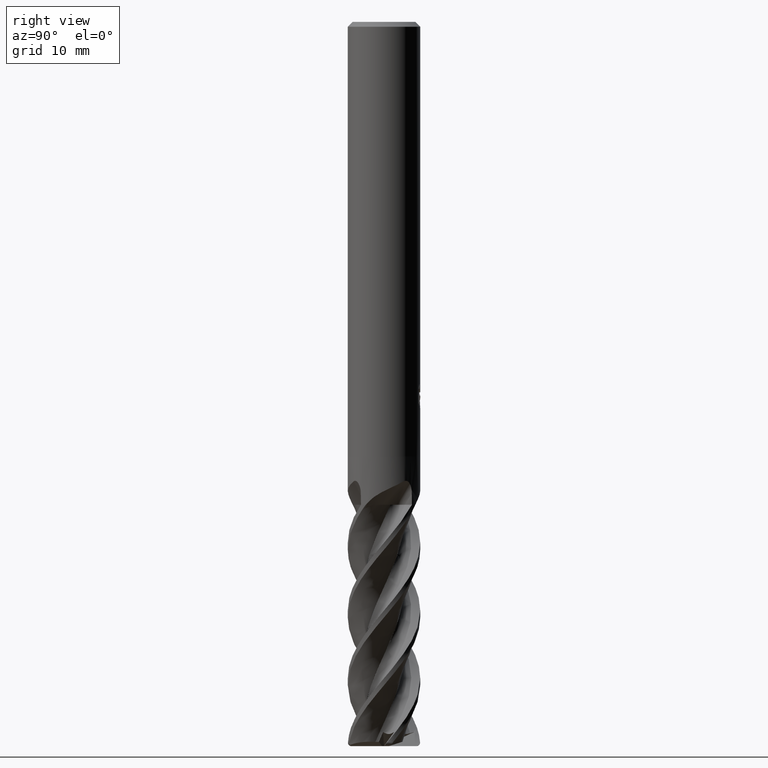
[diagram: clean part render]
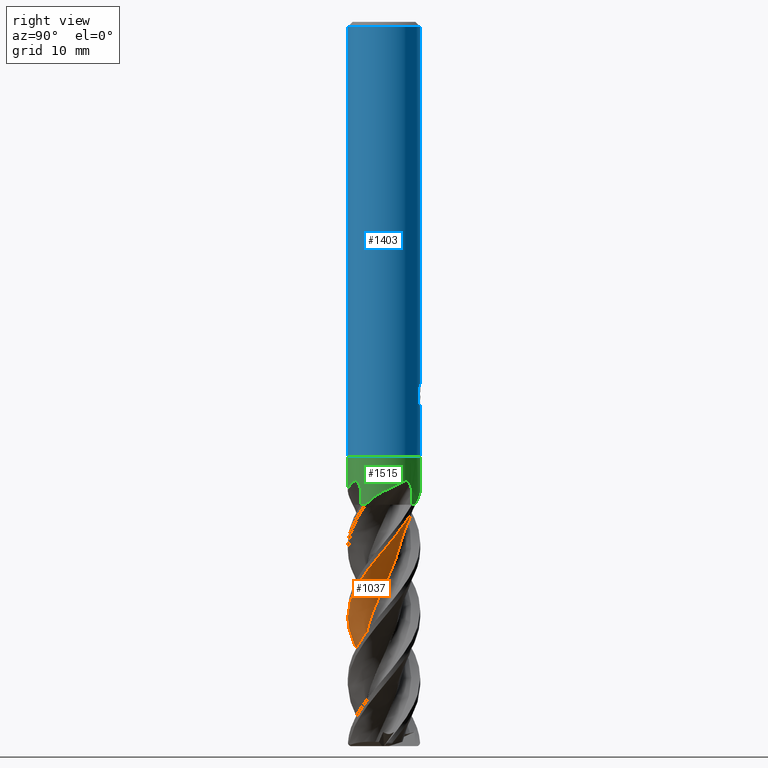
[diagram: same view with three faces highlighted in distinct colors, each labeled with its STEP entity id]
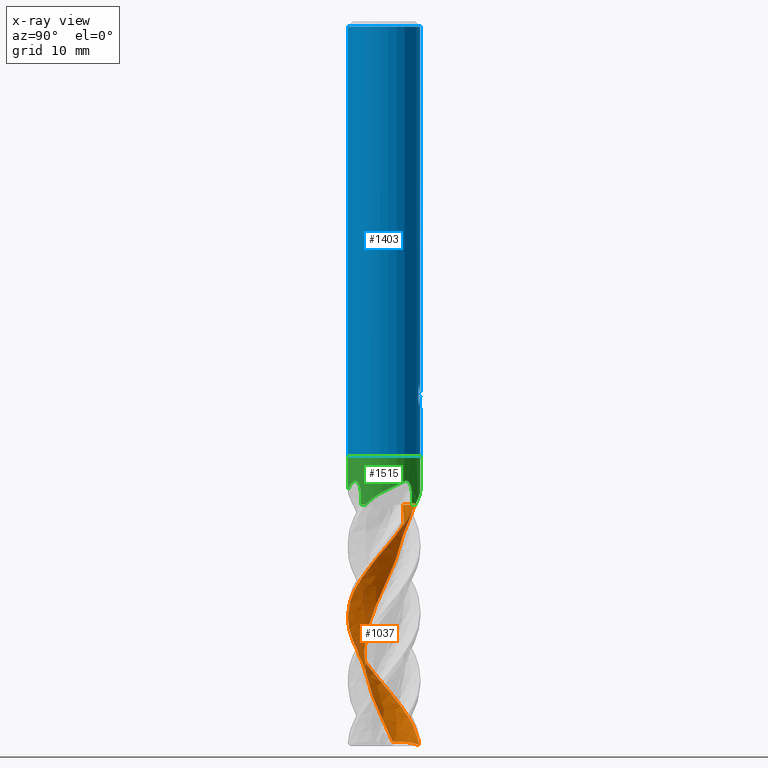
[diagram: x-ray of the same camera — body ghosted, the three highlighted faces saturated]
A machine part, right view with three faces highlighted in distinct colors.
The next image is the same camera in x-ray (body ghosted, the three faces saturated) — at least one of them is partly hidden behind the body in this view.
Their STEP definitions:

[orange] entity #1037 — the highlighted face is a freeform B-spline surface patch.
#637=VERTEX_POINT('',#1703);
#661=EDGE_CURVE('',#985,#699,#1728,.T.);
#669=VERTEX_POINT('',#1736);
#673=EDGE_CURVE('',#985,#1101,#1740,.T.);
#699=VERTEX_POINT('',#1768);
#825=EDGE_CURVE('',#637,#669,#1904,.T.);
#831=VERTEX_POINT('',#1911);
#963=EDGE_CURVE('',#669,#831,#2055,.T.);
#985=VERTEX_POINT('',#2080);
#1037=ADVANCED_FACE('',(#2136),#2137,.T.);
#1101=VERTEX_POINT('',#2204);
#1219=EDGE_CURVE('',#1239,#699,#2333,.T.);
#1223=VERTEX_POINT('',#2337);
#1239=VERTEX_POINT('',#2354);
#1249=EDGE_CURVE('',#1101,#1223,#2366,.T.);
#1425=EDGE_CURVE('',#1223,#637,#2563,.T.);
#1437=EDGE_CURVE('',#831,#1239,#2575,.T.);
#1703=CARTESIAN_POINT('',(-1.13108935995375E-013,-2.99994745592146,-49.3488165274881));
#1728=B_SPLINE_CURVE_WITH_KNOTS('',3,(#3923,#3924,#3925,#3926,#3927,#3928,#3929,#3930,#3931,#3932,#3933,#3934,#3935,#3936,#3937,#3938,#3939,#3940,#3941,#3942,#3943,#3944,#3945,#3946,#3947,#3948,#3949,#3950,#3951,#3952,#3953,#3954,#3955,#3956,#3957,#3958,#3959,#3960,#3961,#3962,#3963,#3964,#3965,#3966,#3967,#3968,#3969,#3970,#3971,#3972,#3973,#3974,#3975),.UNSPECIFIED.,.F.,.F.,(4,1,2,1,2,1,2,1,2,1,2,1,2,1,2,1,2,1,2,1,2,1,2,1,2,1,2,1,2,1,2,1,2,1,4),(0.0,0.501751699894272,1.00350339978854,1.50525509968282,2.00700679957709,3.01051019936563,4.01401359915418,5.01751699894272,6.02102039873127,7.02452379851981,8.02802719830835,9.0315305980969,10.0350339978854,11.038537397674,12.0420407974625,13.0455441972511,14.0490475970396,15.0525509968282,16.0560543966167,17.0595577964053,18.0630611961938,19.0665645959823,20.0700679957709,21.0735713955594,22.077074795348,23.0805781951365,24.0840815949251,25.0875849947136,26.0910883945022,27.0945917942907,28.0980951940792,29.1015985938678,30.1051019936563,31.1086053934449,32.1121087932334),.UNSPECIFIED.);
#1736=CARTESIAN_POINT('',(1.5115673627272,2.59124759873267,-40.0));
#1740=B_SPLINE_CURVE_WITH_KNOTS('',3,(#3989,#3990,#3991,#3992,#3993,#3994,#3995,#3996,#3997,#3998),.UNSPECIFIED.,.F.,.F.,(4,2,2,2,4),(0.0,0.813406266974983,1.60877064430708,2.05198661300067,2.52661928706878),.UNSPECIFIED.);
#1768=CARTESIAN_POINT('',(-0.537034026188635,1.55283062695354,-40.0000000000018));
#1904=B_SPLINE_CURVE_WITH_KNOTS('',3,(#4925,#4926,#4927,#4928,#4929,#4930,#4931,#4932,#4933,#4934,#4935,#4936,#4937,#4938,#4939,#4940,#4941,#4942,#4943,#4944,#4945,#4946,#4947,#4948,#4949,#4950,#4951,#4952,#4953,#4954,#4955,#4956,#4957,#4958,#4959,#4960,#4961,#4962,#4963,#4964,#4965,#4966,#4967,#4968,#4969,#4970,#4971,#4972),.UNSPECIFIED.,.F.,.F.,(4,2,2,2,2,2,2,2,2,2,2,2,2,2,2,2,2,2,2,2,2,2,2,4),(0.0,0.687072791981423,2.12162116584878,3.04990289422018,3.43227907600876,3.72091563065182,4.23670577051928,4.4096147595566,4.55933828667596,4.8308267867497,4.98418524220236,5.08983875293848,5.184887897981,5.24180925678555,5.2920764536373,5.39716707490177,5.46605232475911,5.51263471322675,5.54692771261166,5.57327865641755,5.59173359514907,5.60233417059829,5.61048094178929,5.64184286118388),.UNSPECIFIED.);
#1911=CARTESIAN_POINT('',(1.49866203222363,2.59163664146037,-40.0));
#2055=B_SPLINE_CURVE_WITH_KNOTS('',3,(#6113,#6114,#6115,#6116,#6117,#6118,#6119,#6120),.UNSPECIFIED.,.F.,.F.,(4,2,2,4),(0.0,0.932369823449021,1.79740934038876,2.66241433769794),.UNSPECIFIED.);
#2080=CARTESIAN_POINT('',(-1.48000156616761,0.714463529254854,-59.6518178320677));
#2136=FACE_OUTER_BOUND('',#6660,.T.);
#2137=B_SPLINE_SURFACE_WITH_KNOTS('',3,3,((#6661,#6662,#6663,#6664,#6665,#6666,#6667,#6668,#6669,#6670,#6671,#6672,#6673,#6674,#6675,#6676,#6677,#6678,#6679,#6680,#6681,#6682,#6683,#6684,#6685,#6686,#6687,#6688,#6689,#6690,#6691,#6692,#6693,#6694,#6695,#6696,#6697,#6698,#6699,#6700,#6701,#6702,#6703,#6704,#6705,#6706,#6707,#6708,#6709,#6710,#6711,#6712,#6713),(#6714,#6715,#6716,#6717,#6718,#6719,#6720,#6721,#6722,#6723,#6724,#6725,#6726,#6727,#6728,#6729,#6730,#6731,#6732,#6733,#6734,#6735,#6736,#6737,#6738,#6739,#6740,#6741,#6742,#6743,#6744,#6745,#6746,#6747,#6748,#6749,#6750,#6751,#6752,#6753,#6754,#6755,#6756,#6757,#6758,#6759,#6760,#6761,#6762,#6763,#6764,#6765,#6766),(#6767,#6768,#6769,#6770,#6771,#6772,#6773,#6774,#6775,#6776,#6777,#6778,#6779,#6780,#6781,#6782,#6783,#6784,#6785,#6786,#6787,#6788,#6789,#6790,#6791,#6792,#6793,#6794,#6795,#6796,#6797,#6798,#6799,#6800,#6801,#6802,#6803,#6804,#6805,#6806,#6807,#6808,#6809,#6810,#6811,#6812,#6813,#6814,#6815,#6816,#6817,#6818,#6819),(#6820,#6821,#6822,#6823,#6824,#6825,#6826,#6827,#6828,#6829,#6830,#6831,#6832,#6833,#6834,#6835,#6836,#6837,#6838,#6839,#6840,#6841,#6842,#6843,#6844,#6845,#6846,#6847,#6848,#6849,#6850,#6851,#6852,#6853,#6854,#6855,#6856,#6857,#6858,#6859,#6860,#6861,#6862,#6863,#6864,#6865,#6866,#6867,#6868,#6869,#6870,#6871,#6872),(#6873,#6874,#6875,#6876,#6877,#6878,#6879,#6880,#6881,#6882,#6883,#6884,#6885,#6886,#6887,#6888,#6889,#6890,#6891,#6892,#6893,#6894,#6895,#6896,#6897,#6898,#6899,#6900,#6901,#6902,#6903,#6904,#6905,#6906,#6907,#6908,#6909,#6910,#6911,#6912,#6913,#6914,#6915,#6916,#6917,#6918,#6919,#6920,#6921,#6922,#6923,#6924,#6925),(#6926,#6927,#6928,#6929,#6930,#6931,#6932,#6933,#6934,#6935,#6936,#6937,#6938,#6939,#6940,#6941,#6942,#6943,#6944,#6945,#6946,#6947,#6948,#6949,#6950,#6951,#6952,#6953,#6954,#6955,#6956,#6957,#6958,#6959,#6960,#6961,#6962,#6963,#6964,#6965,#6966,#6967,#6968,#6969,#6970,#6971,#6972,#6973,#6974,#6975,#6976,#6977,#6978)),.UNSPECIFIED.,.F.,.F.,.F.,(4,1,1,4),(4,1,2,1,2,1,2,1,2,1,2,1,2,1,2,1,2,1,2,1,2,1,2,1,2,1,2,1,2,1,2,1,2,1,4),(-1.11221997673769,-0.695137485461054,-0.278054994184422,0.0),(0.0,0.501751699894272,1.00350339978854,1.50525509968282,2.00700679957709,3.01051019936563,4.01401359915418,5.01751699894272,6.02102039873127,7.02452379851981,8.02802719830835,9.0315305980969,10.0350339978854,11.038537397674,12.0420407974625,13.0455441972511,14.0490475970396,15.0525509968282,16.0560543966167,17.0595577964053,18.0630611961938,19.0665645959823,20.0700679957709,21.0735713955594,22.077074795348,23.0805781951365,24.0840815949251,25.0875849947136,26.0910883945022,27.0945917942907,28.0980951940792,29.1015985938678,30.1051019936563,31.1086053934449,32.1121087932334),.UNSPECIFIED.);
#2204=CARTESIAN_POINT('',(-0.689493691605621,2.83283715275936,-59.9086694105452));
#2333=B_SPLINE_CURVE_WITH_KNOTS('',3,(#8449,#8450,#8451,#8452,#8453,#8454,#8455,#8456),.UNSPECIFIED.,.F.,.F.,(4,2,2,4),(0.0,0.932369823449021,1.79740934038876,2.66241433769794),.UNSPECIFIED.);
#2337=CARTESIAN_POINT('',(-0.731875903324204,2.90935691556285,-59.7));
#2354=CARTESIAN_POINT('',(0.625213692485823,2.45160747350508,-40.0));
#2366=B_SPLINE_CURVE_WITH_KNOTS('',3,(#8957,#8958,#8959,#8960,#8961,#8962,#8963,#8964,#8965,#8966,#8967,#8968,#8969,#8970,#8971,#8972,#8973,#8974,#8975,#8976,#8977,#8978),.UNSPECIFIED.,.F.,.F.,(4,2,2,2,2,2,2,2,2,2,4),(0.0,0.364747132897528,0.671104005768258,0.859872884275604,0.977541209413898,1.05343380448751,1.14795365988123,1.22004337489566,1.24643780272559,1.25902236920375,1.27038028693089),.UNSPECIFIED.);
#2563=B_SPLINE_CURVE_WITH_KNOTS('',3,(#10156,#10157,#10158,#10159,#10160,#10161,#10162,#10163,#10164,#10165,#10166,#10167,#10168,#10169,#10170,#10171,#10172,#10173,#10174,#10175,#10176,#10177,#10178,#10179,#10180,#10181,#10182,#10183,#10184,#10185,#10186,#10187,#10188,#10189,#10190,#10191,#10192,#10193,#10194,#10195,#10196,#10197,#10198,#10199,#10200,#10201,#10202,#10203),.UNSPECIFIED.,.F.,.F.,(4,2,2,2,2,2,2,2,2,2,2,2,2,2,2,2,2,2,2,2,2,2,2,4),(0.0,0.687072791981423,2.12162116584878,3.04990289422018,3.43227907600876,3.72091563065182,4.23670577051928,4.4096147595566,4.55933828667596,4.8308267867497,4.98418524220236,5.08983875293848,5.184887897981,5.24180925678555,5.2920764536373,5.39716707490177,5.46605232475911,5.51263471322675,5.54692771261166,5.57327865641755,5.59173359514907,5.60233417059829,5.61048094178929,5.64184286118388),.UNSPECIFIED.);
#2575=B_SPLINE_CURVE_WITH_KNOTS('',3,(#10250,#10251,#10252,#10253,#10254,#10255,#10256,#10257),.UNSPECIFIED.,.F.,.F.,(4,2,2,4),(0.0,0.932369823449021,1.79740934038876,2.66241433769794),.UNSPECIFIED.);
#3923=CARTESIAN_POINT('',(0.927100013055889,1.37377925642528,-66.0));
#3924=CARTESIAN_POINT('',(0.910123568696672,1.3752200268088,-65.833265325977));
#3925=CARTESIAN_POINT('',(0.847606552955629,1.4041266831668,-65.5003558272926));
#3926=CARTESIAN_POINT('',(0.715539540384544,1.47518384048821,-65.1675438194078));
#3927=CARTESIAN_POINT('',(0.541965216346871,1.55243389164127,-64.8337640843485));
#3928=CARTESIAN_POINT('',(0.373752828226717,1.60813257866397,-64.4998435974634));
#3929=CARTESIAN_POINT('',(0.219616403203308,1.63215665017248,-64.166309237953));
#3930=CARTESIAN_POINT('',(-0.00317558139435407,1.65112813451144,-63.6666262591617));
#3931=CARTESIAN_POINT('',(-0.297379908887953,1.6354685328033,-63.0003021032493));
#3932=CARTESIAN_POINT('',(-0.588476062326141,1.54112006792571,-62.3339377122739));
#3933=CARTESIAN_POINT('',(-0.874541480952399,1.4007906406661,-61.6670205709055));
#3934=CARTESIAN_POINT('',(-1.12519594274163,1.22533753488045,-60.9999700316424));
#3935=CARTESIAN_POINT('',(-1.31905949111991,0.991273841985201,-60.3334618549121));
#3936=CARTESIAN_POINT('',(-1.48459300766049,0.722840017445761,-59.6668787624018));
#3937=CARTESIAN_POINT('',(-1.60371780284721,0.441987189224195,-59.0000920728818));
#3938=CARTESIAN_POINT('',(-1.64409006167871,0.139897357766238,-58.3336000594669));
#3939=CARTESIAN_POINT('',(-1.64192190056367,-0.17544007116337,-57.6669129878455));
#3940=CARTESIAN_POINT('',(-1.59381183547181,-0.476264487993947,-57.0000590583372));
#3941=CARTESIAN_POINT('',(-1.46787637469304,-0.75354213208453,-56.3335701884147));
#3942=CARTESIAN_POINT('',(-1.29862484394355,-1.01990992907298,-55.6669062245578));
#3943=CARTESIAN_POINT('',(-1.09806557832615,-1.24956910955872,-55.0000638147321));
#3944=CARTESIAN_POINT('',(-0.844117235636308,-1.41774470931781,-54.3335723490338));
#3945=CARTESIAN_POINT('',(-0.559391573043556,-1.55361885865806,-53.6669053453549));
#3946=CARTESIAN_POINT('',(-0.267605743533515,-1.64180552611269,-53.0000625297501));
#3947=CARTESIAN_POINT('',(0.0368771297839016,-1.64959480565617,-52.3335721157341));
#3948=CARTESIAN_POINT('',(0.350342146996728,-1.61366474891929,-51.6669049835311));
#3949=CARTESIAN_POINT('',(0.644471275634713,-1.53356000430054,-51.0000615986014));
#3950=CARTESIAN_POINT('',(0.906671213281783,-1.37857730774612,-50.3335709622497));
#3951=CARTESIAN_POINT('',(1.15327919400251,-1.18177894351689,-49.6669042496542));
#3952=CARTESIAN_POINT('',(1.36006165634778,-0.957800099299605,-49.0000612445002));
#3953=CARTESIAN_POINT('',(1.50004990584561,-0.687297794858831,-48.3335706104044));
#3954=CARTESIAN_POINT('',(1.60463183890943,-0.389628539876197,-47.6669036726334));
#3955=CARTESIAN_POINT('',(1.66103492033128,-0.0900565593697242,-47.000060552797));
#3956=CARTESIAN_POINT('',(1.63613673060431,0.213503491887931,-46.3335699426198));
#3957=CARTESIAN_POINT('',(1.56681147986396,0.521301858255701,-45.6669030281412));
#3958=CARTESIAN_POINT('',(1.4556408411351,0.805143025357343,-45.0000597900184));
#3959=CARTESIAN_POINT('',(1.27344892162647,1.0492139273016,-44.3335690595323));
#3960=CARTESIAN_POINT('',(1.05135644931291,1.2733001494282,-43.6669021917097));
#3961=CARTESIAN_POINT('',(0.806503885085501,1.45488703038088,-43.0000591834663));
#3962=CARTESIAN_POINT('',(0.522536811475447,1.56508337586849,-42.3335677686242));
#3963=CARTESIAN_POINT('',(0.215350425116847,1.63715908483876,-41.6668992117951));
#3964=CARTESIAN_POINT('',(-0.088529200460097,1.66111246209767,-41.000055627994));
#3965=CARTESIAN_POINT('',(-0.387634958612848,1.60382278434103,-40.3335693773441));
#3966=CARTESIAN_POINT('',(-0.68621858382505,1.50191169003628,-39.666909573958));
#3967=CARTESIAN_POINT('',(-0.956573808429228,1.36094307790349,-39.0000657528109));
#3968=CARTESIAN_POINT('',(-1.1796836388068,1.15362917029282,-38.3335565172502));
#3969=CARTESIAN_POINT('',(-1.37855009543843,0.908915700982912,-37.6668648300179));
#3970=CARTESIAN_POINT('',(-1.53278455965602,0.646175817054598,-37.0000304834489));
#3971=CARTESIAN_POINT('',(-1.61223671584726,0.351445062833119,-36.3335963013916));
#3972=CARTESIAN_POINT('',(-1.65115642725648,0.0369766627221988,-35.6669870205093));
#3973=CARTESIAN_POINT('',(-1.64186638181578,-0.267959195527011,-35.0000979055621));
#3974=CARTESIAN_POINT('',(-1.55325393487067,-0.555192864957297,-34.3335168117555));
#3975=CARTESIAN_POINT('',(-1.48789416796972,-0.695419030382029,-34.0001799299302));
#3989=CARTESIAN_POINT('',(-1.48000156616391,0.714463529259399,-59.651817832074));
#3990=CARTESIAN_POINT('',(-1.53550779893407,0.979243082236527,-59.6337827637832));
#3991=CARTESIAN_POINT('',(-1.54296750121637,1.25059795124488,-59.6313589596478));
#3992=CARTESIAN_POINT('',(-1.45316022226732,1.77783471974897,-59.6605391134434));
#3993=CARTESIAN_POINT('',(-1.35977681884469,2.0243644511867,-59.6908812204536));
#3994=CARTESIAN_POINT('',(-1.14708365802513,2.37093145184136,-59.7599894176579));
#3995=CARTESIAN_POINT('',(-1.05859219339278,2.48582528319682,-59.7887420374645));
#3996=CARTESIAN_POINT('',(-0.853792674102771,2.70282934876099,-59.8552854350608));
#3997=CARTESIAN_POINT('',(-0.736702996006567,2.80267619972669,-59.8933301776998));
#3998=CARTESIAN_POINT('',(-0.6110898419528,2.88964465342938,-59.9341443655578));
#4925=CARTESIAN_POINT('',(-0.731875903324206,2.90935691556284,-59.7));
#4926=CARTESIAN_POINT('',(-0.87528824955879,2.87327928512447,-59.5251188488506));
#4927=CARTESIAN_POINT('',(-1.01491384710463,2.82688193651995,-59.3487200408784));
#4928=CARTESIAN_POINT('',(-1.43138371472861,2.65406582726146,-58.8041464882332));
#4929=CARTESIAN_POINT('',(-1.6969704157101,2.49352362274672,-58.4306926984972));
#4930=CARTESIAN_POINT('',(-2.08974003822344,2.16187802543811,-57.8324130106784));
#4931=CARTESIAN_POINT('',(-2.30783168416969,1.95237041135354,-57.4801300513984));
#4932=CARTESIAN_POINT('',(-2.59472961437328,1.51350273372081,-56.8452563452017));
#4933=CARTESIAN_POINT('',(-2.66884934448888,1.37873967130438,-56.6594318826029));
#4934=CARTESIAN_POINT('',(-2.78053050254194,1.13229554507151,-56.3360658507185));
#4935=CARTESIAN_POINT('',(-2.82274561486237,1.02273854473916,-56.1974450947303));
#4936=CARTESIAN_POINT('',(-2.92275095880612,0.708586388296719,-55.8142028021715));
#4937=CARTESIAN_POINT('',(-3.00027733016018,0.394987632198058,-55.4374840927651));
#4938=CARTESIAN_POINT('',(-2.99987374025029,-0.13543544083148,-54.7955502731838));
#4939=CARTESIAN_POINT('',(-2.99090487901285,-0.268964800265037,-54.6340897018539));
#4940=CARTESIAN_POINT('',(-2.95735418365558,-0.517102963197248,-54.3348827146234));
#4941=CARTESIAN_POINT('',(-2.93498725059356,-0.632159139319966,-54.1964947510828));
#4942=CARTESIAN_POINT('',(-2.85232155658598,-0.953900333190273,-53.8102546304857));
#4943=CARTESIAN_POINT('',(-2.75002449007843,-1.26426591233994,-53.4288359077136));
#4944=CARTESIAN_POINT('',(-2.41418269871074,-1.79525570772266,-52.6684105183194));
#4945=CARTESIAN_POINT('',(-2.27028058579947,-1.97466704514129,-52.3926085632614));
#4946=CARTESIAN_POINT('',(-1.9914273698074,-2.24932680295026,-51.9352779889669));
#4947=CARTESIAN_POINT('',(-1.807720370773,-2.41368250596382,-51.6518756078106));
#4948=CARTESIAN_POINT('',(-1.30857851856152,-2.71355891210062,-50.94984110004));
#4949=CARTESIAN_POINT('',(-1.05220751318242,-2.82321701350289,-50.6123911800645));
#4950=CARTESIAN_POINT('',(-0.621210634545381,-2.93968841581492,-50.0846961842304));
#4951=CARTESIAN_POINT('',(-0.458826849250307,-2.96937413467902,-49.896320107419));
#4952=CARTESIAN_POINT('',(-0.145203892113326,-3.00007412293758,-49.5235538816663));
#4953=CARTESIAN_POINT('',(0.00176713068279874,-3.00349173925889,-49.3471790259651));
#4954=CARTESIAN_POINT('',(0.452085428110134,-2.98132548046648,-48.802248311558));
#4955=CARTESIAN_POINT('',(0.75651616169645,-2.91975871993319,-48.4281981879018));
#4956=CARTESIAN_POINT('',(1.24116474714477,-2.73881454840491,-47.8264596943827));
#4957=CARTESIAN_POINT('',(1.52404739813542,-2.61193897029701,-47.4653248595604));
#4958=CARTESIAN_POINT('',(2.03095539866351,-2.2228982162428,-46.6918525682841));
#4959=CARTESIAN_POINT('',(2.21693468416235,-2.03827756820325,-46.3774712164675));
#4960=CARTESIAN_POINT('',(2.49653218567744,-1.67473082722752,-45.843774233084));
#4961=CARTESIAN_POINT('',(2.65986832523619,-1.43301368818816,-45.5046306232528));
#4962=CARTESIAN_POINT('',(2.89242059782112,-0.84233750956207,-44.7364253423155));
#4963=CARTESIAN_POINT('',(2.9588607815151,-0.569715595941319,-44.3992346029847));
#4964=CARTESIAN_POINT('',(3.00505722201979,-0.0913123829169034,-43.8399088706799));
#4965=CARTESIAN_POINT('',(3.01512900484993,0.206136836833561,-43.4937896597267));
#4966=CARTESIAN_POINT('',(2.90646715278769,0.772102342755156,-42.7963233925334));
#4967=CARTESIAN_POINT('',(2.84493361573354,0.975358497562644,-42.5402971566403));
#4968=CARTESIAN_POINT('',(2.69759878118104,1.32260900590913,-42.0942998271188));
#4969=CARTESIAN_POINT('',(2.62251571917408,1.46585165621223,-41.9097062680455));
#4970=CARTESIAN_POINT('',(2.19752659995503,2.13734283112362,-40.970715778131));
#4971=CARTESIAN_POINT('',(1.77424577831729,2.43801995560894,-40.3518271330001));
#4972=CARTESIAN_POINT('',(1.51156736272725,2.59124759873266,-40.0));
#6113=CARTESIAN_POINT('',(1.769132495698,2.56877497921521,-40.0));
#6114=CARTESIAN_POINT('',(1.46143636365163,2.61251829691656,-40.0));
#6115=CARTESIAN_POINT('',(1.14813884858606,2.59574496904842,-40.0));
#6116=CARTESIAN_POINT('',(0.567363621488895,2.44855840570693,-40.0));
#6117=CARTESIAN_POINT('',(0.302991950445083,2.32765065313537,-40.0));
#6118=CARTESIAN_POINT('',(-0.169788961388112,1.99744020861869,-40.0));
#6119=CARTESIAN_POINT('',(-0.374309004470744,1.79085900589896,-40.0));
#6120=CARTESIAN_POINT('',(-0.537034026190267,1.55283062695298,-40.0));
#6660=EDGE_LOOP('',(#11957,#11958,#11959,#11960,#11961,#11962,#11963,#11964));
#6661=CARTESIAN_POINT('',(3.1173843910557,0.127728453533982,-66.0));
#6662=CARTESIAN_POINT('',(3.1160977440939,0.15674869261794,-65.8333328603759));
#6663=CARTESIAN_POINT('',(3.11135123037875,0.287614188957997,-65.5000249155978));
#6664=CARTESIAN_POINT('',(3.07171781701902,0.570280047791386,-65.166718121943));
#6665=CARTESIAN_POINT('',(2.98534705961107,0.919750556716962,-64.8333568843392));
#6666=CARTESIAN_POINT('',(2.87569778703811,1.23709260722306,-64.4999890903528));
#6667=CARTESIAN_POINT('',(2.73864692491348,1.49939516133223,-64.1666449598826));
#6668=CARTESIAN_POINT('',(2.51832290433501,1.86230443652152,-63.6666641460483));
#6669=CARTESIAN_POINT('',(2.16597258193741,2.29693888359327,-63.0000172502209));
#6670=CARTESIAN_POINT('',(1.69402168691345,2.63631186628568,-62.3333671695607));
#6671=CARTESIAN_POINT('',(1.15615976057468,2.91256387569333,-61.6666853928381));
#6672=CARTESIAN_POINT('',(0.606348474299188,3.09894212025403,-60.9999962040095));
#6673=CARTESIAN_POINT('',(0.0301174483182593,3.133211272586,-60.3333386517027));
#6674=CARTESIAN_POINT('',(-0.56620116688719,3.08180080395475,-59.6666766772944));
#6675=CARTESIAN_POINT('',(-1.12968019998395,2.94886547470018,-59.0000028290391));
#6676=CARTESIAN_POINT('',(-1.63765523467504,2.67132308932541,-58.3333459836782));
#6677=CARTESIAN_POINT('',(-2.11570311511743,2.31125537500056,-57.6666778652747));
#6678=CARTESIAN_POINT('',(-2.5221115232627,1.90006899821446,-57.0000001067728));
#6679=CARTESIAN_POINT('',(-2.80533997446214,1.3957444906429,-56.3333435048488));
#6680=CARTESIAN_POINT('',(-3.01968982779138,0.836468902866149,-55.6666767574336));
#6681=CARTESIAN_POINT('',(-3.14605602819995,0.271813664173567,-54.9999996704651));
#6682=CARTESIAN_POINT('',(-3.11838324511533,-0.306025285363331,-54.3333429017529));
#6683=CARTESIAN_POINT('',(-3.00327073835576,-0.89359932366291,-53.6666759695079));
#6684=CARTESIAN_POINT('',(-2.81078033776985,-1.43909778986093,-52.9999988578316));
#6685=CARTESIAN_POINT('',(-2.48070305293624,-1.91418311878734,-52.3333421544276));
#6686=CARTESIAN_POINT('',(-2.07128673020296,-2.35115761545396,-51.6666752171438));
#6687=CARTESIAN_POINT('',(-1.61861936316276,-2.71137808816114,-50.9999980728587));
#6688=CARTESIAN_POINT('',(-1.0867403872004,-2.93887339241155,-50.333341355402));
#6689=CARTESIAN_POINT('',(-0.507854384400353,-3.09196587480332,-49.6666744416483));
#6690=CARTESIAN_POINT('',(0.0669657957319286,-3.15705813924915,-48.9999973190758));
#6691=CARTESIAN_POINT('',(0.63849853234051,-3.06762182653798,-48.3333406021033));
#6692=CARTESIAN_POINT('',(1.21038801384668,-2.89017853312676,-47.666673675931));
#6693=CARTESIAN_POINT('',(1.73213173164248,-2.64030702778847,-46.9999965475283));
#6694=CARTESIAN_POINT('',(2.16908815002746,-2.26120392758518,-46.3333398316484));
#6695=CARTESIAN_POINT('',(2.55964495241018,-1.8073159549831,-45.6666729051671));
#6696=CARTESIAN_POINT('',(2.86925953650521,-1.3186533996302,-44.9999957669105));
#6697=CARTESIAN_POINT('',(3.03842786269722,-0.765465141522836,-44.3333390448861));
#6698=CARTESIAN_POINT('',(3.12858678041985,-0.17352054975335,-43.6666721271276));
#6699=CARTESIAN_POINT('',(3.13169551741402,0.404968678735605,-42.9999950133716));
#6700=CARTESIAN_POINT('',(2.98150191564485,0.963658859837514,-42.3333382487497));
#6701=CARTESIAN_POINT('',(2.74375648349484,1.51326869184777,-41.6666712107264));
#6702=CARTESIAN_POINT('',(2.43939671529521,2.00519101069597,-40.999994021885));
#6703=CARTESIAN_POINT('',(2.01569251850169,2.39894945780265,-40.3333375674479));
#6704=CARTESIAN_POINT('',(1.5225788986782,2.73859607454897,-39.6666711199577));
#6705=CARTESIAN_POINT('',(1.00343953429262,2.99411062629842,-38.9999940732981));
#6706=CARTESIAN_POINT('',(0.435324859172359,3.10296332452244,-38.3333362444265));
#6707=CARTESIAN_POINT('',(-0.162553996915039,3.12915776501416,-37.6666676353083));
#6708=CARTESIAN_POINT('',(-0.737740428762896,3.07040363973267,-36.9999905502962));
#6709=CARTESIAN_POINT('',(-1.27833044823672,2.86086150643167,-36.3333373768499));
#6710=CARTESIAN_POINT('',(-1.80131893745144,2.56404619103269,-35.6666750173151));
#6711=CARTESIAN_POINT('',(-2.25742359327178,2.20757536290495,-34.9999974061393));
#6712=CARTESIAN_POINT('',(-2.59863751375809,1.74987504205653,-34.3333405494397));
#6713=CARTESIAN_POINT('',(-2.73904810137495,1.49195429534152,-34.0000104194931));
#6714=CARTESIAN_POINT('',(2.95902498709308,0.419334350015611,-66.0));
#6715=CARTESIAN_POINT('',(2.9540665323268,0.446360560897614,-65.8333172533851));
#6716=CARTESIAN_POINT('',(2.93577176226973,0.56983809870718,-65.5001013882058));
#6717=CARTESIAN_POINT('',(2.87109170484624,0.835261661320884,-65.166908938193));
#6718=CARTESIAN_POINT('',(2.75604619314383,1.16034733533214,-64.83345098688));
#6719=CARTESIAN_POINT('',(2.62166063274864,1.45249677534236,-64.4999554673202));
#6720=CARTESIAN_POINT('',(2.46613656426529,1.68933689717663,-64.1665673758575));
#6721=CARTESIAN_POINT('',(2.22163002918514,2.01395035429846,-63.6666553899583));
#6722=CARTESIAN_POINT('',(1.84448387806522,2.39418050252385,-63.0000830776156));
#6723=CARTESIAN_POINT('',(1.36261333321071,2.67247347651906,-62.3334990232803));
#6724=CARTESIAN_POINT('',(0.823957509105528,2.88463145978904,-61.6667628483877));
#6725=CARTESIAN_POINT('',(0.282454871589539,3.00974720612253,-60.9999901578105));
#6726=CARTESIAN_POINT('',(-0.269661976843454,2.98742729029568,-60.3333671223373));
#6727=CARTESIAN_POINT('',(-0.832884768917706,2.88180099264167,-59.6667233797833));
#6728=CARTESIAN_POINT('',(-1.35694693477805,2.70143573661457,-59.0000234528266));
#6729=CARTESIAN_POINT('',(-1.81432966548234,2.38864566479062,-58.3334046989354));
#6730=CARTESIAN_POINT('',(-2.23555915844735,2.00020183026284,-57.6667322022433));
#6731=CARTESIAN_POINT('',(-2.58346136182453,1.56976602935353,-57.0000137342624));
#6732=CARTESIAN_POINT('',(-2.8051456875089,1.06239511773666,-56.3333958819174));
#6733=CARTESIAN_POINT('',(-2.95623256037602,0.509216075306881,-55.666729795376));
#6734=CARTESIAN_POINT('',(-3.02274915780818,-0.0406958646966687,-55.0000144896054));
#6735=CARTESIAN_POINT('',(-2.94129388010045,-0.58844443321319,-54.3333959263162));
#6736=CARTESIAN_POINT('',(-2.77581433307636,-1.13728806136347,-53.6667289775494));
#6737=CARTESIAN_POINT('',(-2.54043144060207,-1.63854080611333,-53.0000135710872));
#6738=CARTESIAN_POINT('',(-2.18073584730573,-2.05958286610024,-52.3333953000346));
#6739=CARTESIAN_POINT('',(-1.74918038097969,-2.43699644582841,-51.6667283131853));
#6740=CARTESIAN_POINT('',(-1.28363835805293,-2.73694949390168,-51.0000127553615));
#6741=CARTESIAN_POINT('',(-0.755336021567034,-2.90292205589908,-50.3333944152932));
#6742=CARTESIAN_POINT('',(-0.189293041655383,-2.99378531576186,-49.666727551105));
#6743=CARTESIAN_POINT('',(0.364457140987415,-3.00096510061722,-49.0000120919494));
#6744=CARTESIAN_POINT('',(0.900309789948862,-2.86128179287954,-48.3333937549661));
#6745=CARTESIAN_POINT('',(1.42829042661535,-2.63791025689963,-47.6667268287937));
#6746=CARTESIAN_POINT('',(1.90144319025379,-2.3501350863057,-47.0000113375905));
#6747=CARTESIAN_POINT('',(2.28149309809826,-1.94737836077491,-46.3333930109658));
#6748=CARTESIAN_POINT('',(2.61046044654551,-1.47786407412422,-45.6667260844845));
#6749=CARTESIAN_POINT('',(2.85877598572061,-0.982861548771372,-45.0000105602598));
#6750=CARTESIAN_POINT('',(2.96716060920224,-0.439823802440344,-44.3333922063283));
#6751=CARTESIAN_POINT('',(2.99682693718485,0.132682067718646,-43.6667252885698));
#6752=CARTESIAN_POINT('',(2.94461474455072,0.684015498335035,-43.0000098509096));
#6753=CARTESIAN_POINT('',(2.74828541088331,1.20184269395513,-42.3333912798062));
#6754=CARTESIAN_POINT('',(2.46958090923061,1.70286992725593,-41.666723911346));
#6755=CARTESIAN_POINT('',(2.13274718189965,2.14241937111966,-41.0000082581282));
#6756=CARTESIAN_POINT('',(1.69162704822706,2.47707019485618,-40.3333911291889));
#6757=CARTESIAN_POINT('',(1.18957857315405,2.75380982697864,-39.666726234752));
#6758=CARTESIAN_POINT('',(0.670705396975841,2.94768759889238,-39.0000106288495));
#6759=CARTESIAN_POINT('',(0.119201277920172,2.99719831996215,-38.3333871586924));
#6760=CARTESIAN_POINT('',(-0.452880757649512,2.96535872868276,-37.6667131964969));
#6761=CARTESIAN_POINT('',(-0.995164927477188,2.85453042958835,-36.9999997818908));
#6762=CARTESIAN_POINT('',(-1.49010075823177,2.60340762301891,-36.3333972170595));
#6763=CARTESIAN_POINT('',(-1.96017610858634,2.27097119094505,-35.6667471167327));
#6764=CARTESIAN_POINT('',(-2.3606470732622,1.88791550552453,-35.0000206366586));
#6765=CARTESIAN_POINT('',(-2.64193868902402,1.4194044144348,-34.3333812758291));
#6766=CARTESIAN_POINT('',(-2.75115436688947,1.16034437919438,-34.0000495928293));
#6767=CARTESIAN_POINT('',(2.51902248288791,0.935391669393859,-66.0));
#6768=CARTESIAN_POINT('',(2.50756600921994,0.956877474700602,-65.8332895444076));
#6769=CARTESIAN_POINT('',(2.46530766289841,1.05985124813456,-65.5002371595013));
#6770=CARTESIAN_POINT('',(2.35784249383506,1.28020309741159,-65.1672477168137));
#6771=CARTESIAN_POINT('',(2.19577945256917,1.54440088605917,-64.8336180589656));
#6772=CARTESIAN_POINT('',(2.02259289177815,1.77571357306115,-64.4998957720371));
#6773=CARTESIAN_POINT('',(1.84090474064768,1.95382716217901,-64.1664296315972));
#6774=CARTESIAN_POINT('',(1.56424800589367,2.19163881190873,-63.6666398441754));
#6775=CARTESIAN_POINT('',(1.16054034273442,2.452599433004,-63.0001999534818));
#6776=CARTESIAN_POINT('',(0.684676878781121,2.60456871047672,-62.3337331100391));
#6777=CARTESIAN_POINT('',(0.171549861069635,2.68823739250385,-61.6669003736302));
#6778=CARTESIAN_POINT('',(-0.327421728707802,2.69437639417916,-60.9999794168554));
#6779=CARTESIAN_POINT('',(-0.807382201817595,2.56911087368341,-60.3334176734557));
#6780=CARTESIAN_POINT('',(-1.28149422283392,2.36908401077211,-59.6668062925806));
#6781=CARTESIAN_POINT('',(-1.70667784657864,2.11056057801806,-59.0000600694044));
#6782=CARTESIAN_POINT('',(-2.04799112265227,1.74869818675771,-58.3335089456304));
#6783=CARTESIAN_POINT('',(-2.34360950469536,1.32755552289311,-57.6668286708089));
#6784=CARTESIAN_POINT('',(-2.56638709021131,0.883383410717425,-57.0000379158261));
#6785=CARTESIAN_POINT('',(-2.66372758911713,0.39595871997148,-56.3334889015837));
#6786=CARTESIAN_POINT('',(-2.69090194298392,-0.118265951536193,-55.6668239317041));
#6787=CARTESIAN_POINT('',(-2.64398911463884,-0.613378775856509,-55.000040814555));
#6788=CARTESIAN_POINT('',(-2.46772818768268,-1.07820916262489,-54.3334900660553));
#6789=CARTESIAN_POINT('',(-2.21792741872979,-1.52830419398644,-53.6668230902872));
#6790=CARTESIAN_POINT('',(-1.91550167824899,-1.92294293742759,-53.000039698002));
#6791=CARTESIAN_POINT('',(-1.5194494957021,-2.2233971045961,-52.333489645286));
#6792=CARTESIAN_POINT('',(-1.06882604074539,-2.47235464715086,-51.6668225915452));
#6793=CARTESIAN_POINT('',(-0.603038930302748,-2.64635857647648,-51.0000388135533));
#6794=CARTESIAN_POINT('',(-0.107916267007432,-2.69083203485523,-50.3334886272191));
#6795=CARTESIAN_POINT('',(0.406120377721354,-2.66270399312332,-49.6668218344442));
#6796=CARTESIAN_POINT('',(0.893241006165952,-2.56300415266506,-49.0000383220382));
#6797=CARTESIAN_POINT('',(1.33649483912732,-2.3379491178403,-48.3334881278757));
#6798=CARTESIAN_POINT('',(1.75725072226065,-2.04132239545441,-47.6668211932895));
#6799=CARTESIAN_POINT('',(2.11721198935801,-1.69831766608182,-47.0000376004298));
#6800=CARTESIAN_POINT('',(2.37347252301717,-1.27234182674777,-46.3334874222843));
#6801=CARTESIAN_POINT('',(2.57268324931986,-0.797639922816016,-45.666820504502));
#6802=CARTESIAN_POINT('',(2.69575158304494,-0.315894579163559,-45.0000368315529));
#6803=CARTESIAN_POINT('',(2.68689601354953,0.18113195893826,-44.3334865721655));
#6804=CARTESIAN_POINT('',(2.60383376254595,0.689178378175864,-43.6668196905814));
#6805=CARTESIAN_POINT('',(2.45249837653467,1.16281034451632,-43.0000361718933));
#6806=CARTESIAN_POINT('',(2.18121034988777,1.57941507541872,-42.3334854578969));
#6807=CARTESIAN_POINT('',(1.84116361666856,1.96597487464452,-41.6668174514477));
#6808=CARTESIAN_POINT('',(1.4615568367306,2.28706815837912,-41.0000335319126));
#6809=CARTESIAN_POINT('',(1.01062081498804,2.49616755173562,-40.3334862525716));
#6810=CARTESIAN_POINT('',(0.517321423918989,2.64334714415435,-39.6668240579213));
#6811=CARTESIAN_POINT('',(0.0250570646211388,2.71409729212275,-39.0000400571481));
#6812=CARTESIAN_POINT('',(-0.468129197604556,2.65198352854927,-38.3334775112887));
#6813=CARTESIAN_POINT('',(-0.964079160176692,2.51502105978213,-37.6667941284133));
#6814=CARTESIAN_POINT('',(-1.41854564212788,2.31399246958276,-37.0000161537013));
#6815=CARTESIAN_POINT('',(-1.8046062951443,1.99904563583434,-36.3335034533162));
#6816=CARTESIAN_POINT('',(-2.15381378842461,1.61777210257113,-35.666875128837));
#6817=CARTESIAN_POINT('',(-2.43180022733469,1.20509793776363,-35.0000618676985));
#6818=CARTESIAN_POINT('',(-2.58870590219977,0.740322393116313,-34.3334536028539));
#6819=CARTESIAN_POINT('',(-2.63506663409846,0.492181978240432,-34.0001191419845));
#6820=CARTESIAN_POINT('',(1.70385513986593,1.32671682816588,-66.0));
#6821=CARTESIAN_POINT('',(1.68747125478286,1.33793827044804,-65.8332682639954));
#6822=CARTESIAN_POINT('',(1.62708021460857,1.40297143285305,-65.5003414311787));
#6823=CARTESIAN_POINT('',(1.49181336333236,1.54526621055257,-65.1675078977544));
#6824=CARTESIAN_POINT('',(1.30533492971844,1.70984080684346,-64.8337463693598));
#6825=CARTESIAN_POINT('',(1.11772096760095,1.84603196912149,-64.4998499269994));
#6826=CARTESIAN_POINT('',(0.935869158183198,1.93842392827434,-64.1663238434519));
#6827=CARTESIAN_POINT('',(0.666920759779182,2.05305700656513,-63.6666279072746));
#6828=CARTESIAN_POINT('',(0.295275814363798,2.15428164922031,-63.0002897100604));
#6829=CARTESIAN_POINT('',(-0.10501376970573,2.15551265761543,-62.3339128927887));
#6830=CARTESIAN_POINT('',(-0.517600554374728,2.09635073116141,-61.6670059874218));
#6831=CARTESIAN_POINT('',(-0.90044637367408,1.98044069983618,-60.9999711709546));
#6832=CARTESIAN_POINT('',(-1.23683041278413,1.76867378313937,-60.3334564953353));
#6833=CARTESIAN_POINT('',(-1.55131603767732,1.50172191419351,-59.6668699704593));
#6834=CARTESIAN_POINT('',(-1.81374232192994,1.20134976151044,-59.0000881887985));
#6835=CARTESIAN_POINT('',(-1.98705800912222,0.842381297162613,-58.333589009481));
#6836=CARTESIAN_POINT('',(-2.1118943197855,0.449246497140478,-57.6669027554813));
#6837=CARTESIAN_POINT('',(-2.17472812613286,0.0559340034765245,-57.0000564955648));
#6838=CARTESIAN_POINT('',(-2.1312749509002,-0.339995205216228,-56.3335603263341));
#6839=CARTESIAN_POINT('',(-2.02845130546587,-0.739787200725433,-55.6668962420115));
#6840=CARTESIAN_POINT('',(-1.87287973986175,-1.1068171148974,-55.0000610229778));
#6841=CARTESIAN_POINT('',(-1.62585422804107,-1.41935077961749,-54.3335623690898));
#6842=CARTESIAN_POINT('',(-1.32662199814622,-1.70351703192485,-53.6668953644067));
#6843=CARTESIAN_POINT('',(-1.00007612047463,-1.93197472231119,-53.000059762084));
#6844=CARTESIAN_POINT('',(-0.624859118203354,-2.06579366788631,-52.3335621087279));
#6845=CARTESIAN_POINT('',(-0.22039610050488,-2.14786591524908,-51.6668949902937));
#6846=CARTESIAN_POINT('',(0.177640635508808,-2.16821019218994,-51.0000588337643));
#6847=CARTESIAN_POINT('',(0.566673713668066,-2.0825075177812,-50.3335609730172));
#6848=CARTESIAN_POINT('',(0.953026717884841,-1.93743208500291,-49.6668942522533));
#6849=CARTESIAN_POINT('',(1.30118237490898,-1.74344935932696,-49.0000584631404));
#6850=CARTESIAN_POINT('',(1.58543621751617,-1.46435968394187,-48.3335606043354));
#6851=CARTESIAN_POINT('',(1.83591008113546,-1.13637016720255,-47.666893666398));
#6852=CARTESIAN_POINT('',(2.02805518356083,-0.787199010616793,-47.0000577686194));
#6853=CARTESIAN_POINT('',(2.12087607512267,-0.399802175856345,-46.3335599313987));
#6854=CARTESIAN_POINT('',(2.15911556201098,0.0111169593319664,-45.6668930170924));
#6855=CARTESIAN_POINT('',(2.13667501453145,0.409032402642941,-45.0000570052638));
#6856=CARTESIAN_POINT('',(2.00976750241021,0.786629248547851,-44.333559051414));
#6857=CARTESIAN_POINT('',(1.82412020318675,1.15519584286299,-43.6668921842946));
#6858=CARTESIAN_POINT('',(1.59393876820048,1.48055732406343,-43.0000563857176));
#6859=CARTESIAN_POINT('',(1.28596846554196,1.73327622438999,-42.3335577941545));
#6860=CARTESIAN_POINT('',(0.932993547283746,1.94716191125298,-41.6668892820277));
#6861=CARTESIAN_POINT('',(0.565248788307642,2.10075173658265,-41.0000529497467));
#6862=CARTESIAN_POINT('',(0.170181820583331,2.15150524150452,-40.3335592994493));
#6863=CARTESIAN_POINT('',(-0.242452698199991,2.14548309407573,-39.6668991932412));
#6864=CARTESIAN_POINT('',(-0.635757210319106,2.0805218118503,-39.0000626345493));
#6865=CARTESIAN_POINT('',(-0.997546554295597,1.91385060625338,-38.3335469410159));
#6866=CARTESIAN_POINT('',(-1.34389749354766,1.68988076517672,-37.6668562445227));
#6867=CARTESIAN_POINT('',(-1.64258315864497,1.42634850397447,-37.0000287553004));
#6868=CARTESIAN_POINT('',(-1.86144556820014,1.09242681885475,-36.3335850253751));
#6869=CARTESIAN_POINT('',(-2.03693347946666,0.716926466314551,-35.6669734585695));
#6870=CARTESIAN_POINT('',(-2.14961332024359,0.334325745841723,-35.0000935258449));
#6871=CARTESIAN_POINT('',(-2.15691552497021,-0.0586917660843721,-34.333509146997));
#6872=CARTESIAN_POINT('',(-2.13255821236213,-0.259561635133754,-34.0001725554559));
#6873=CARTESIAN_POINT('',(1.14815387449337,1.38236549759598,-66.0));
#6874=CARTESIAN_POINT('',(1.13106930461172,1.38658971204776,-65.8332649924423));
#6875=CARTESIAN_POINT('',(1.0681351602692,1.42577570468166,-65.5003574616975));
#6876=CARTESIAN_POINT('',(0.933154571616982,1.51689420719876,-65.167547897888));
#6877=CARTESIAN_POINT('',(0.753468003663381,1.61848265699241,-64.8337660955331));
#6878=CARTESIAN_POINT('',(0.577497997512914,1.69640391296755,-64.4998428787709));
#6879=CARTESIAN_POINT('',(0.413593991483964,1.73898637900272,-64.1663075799365));
#6880=CARTESIAN_POINT('',(0.175048366523559,1.78371713928349,-63.6666260715893));
#6881=CARTESIAN_POINT('',(-0.14435755185602,1.79893823804658,-63.0003035112597));
#6882=CARTESIAN_POINT('',(-0.46903682183109,1.72854860607363,-62.3339405287335));
#6883=CARTESIAN_POINT('',(-0.793180732647195,1.60761265388583,-61.6670222280825));
#6884=CARTESIAN_POINT('',(-1.08290794462715,1.44527609020118,-60.9999699019045));
#6885=CARTESIAN_POINT('',(-1.3177160361493,1.21350156542099,-60.3334624627536));
#6886=CARTESIAN_POINT('',(-1.52542662429987,0.941287525789783,-59.6668797612602));
#6887=CARTESIAN_POINT('',(-1.68453796397656,0.650872986769969,-59.00009251471));
#6888=CARTESIAN_POINT('',(-1.76091341897383,0.32894534305867,-58.3336013116761));
#6889=CARTESIAN_POINT('',(-1.79247869253075,-0.0119799167618405,-57.6669141519383));
#6890=CARTESIAN_POINT('',(-1.77314468961005,-0.342095042139609,-57.0000593502152));
#6891=CARTESIAN_POINT('',(-1.66719649924949,-0.655262052083987,-56.3335713039341));
#6892=CARTESIAN_POINT('',(-1.51297431790338,-0.961245445503871,-55.6669073621063));
#6893=CARTESIAN_POINT('',(-1.32126817260075,-1.23103214493489,-55.0000641295796));
#6894=CARTESIAN_POINT('',(-1.06520823963141,-1.44023865777153,-54.33357348217));
#6895=CARTESIAN_POINT('',(-0.772198165698671,-1.61765241098588,-53.6669064784911));
#6896=CARTESIAN_POINT('',(-0.466624797519097,-1.74453868636093,-53.0000628443968));
#6897=CARTESIAN_POINT('',(-0.138579614639599,-1.78598478070701,-52.3335732511028));
#6898=CARTESIAN_POINT('',(0.203953601389208,-1.78086947417679,-51.6669061188998));
#6899=CARTESIAN_POINT('',(0.530307892234559,-1.72625007505348,-51.0000619118889));
#6900=CARTESIAN_POINT('',(0.830339370725624,-1.58728935749754,-50.3335720968462));
#6901=CARTESIAN_POINT('',(1.11793639191464,-1.40118242316677,-49.6669053842507));
#6902=CARTESIAN_POINT('',(1.36555592271986,-1.18170307138126,-49.0000615605109));
#6903=CARTESIAN_POINT('',(1.54611164347046,-0.904704285957851,-48.333571746458));
#6904=CARTESIAN_POINT('',(1.69110838920132,-0.594344939658724,-47.666904808687));
#6905=CARTESIAN_POINT('',(1.78451155835497,-0.276915443160611,-47.0000608689089));
#6906=CARTESIAN_POINT('',(1.79054989897583,0.0536790706758045,-46.3335710792398));
#6907=CARTESIAN_POINT('',(1.74874505716083,0.393680633390057,-45.6669041647612));
#6908=CARTESIAN_POINT('',(1.6594581088615,0.71229249783746,-45.0000601062044));
#6909=CARTESIAN_POINT('',(1.48914041778368,0.995693606957167,-44.333570195767));
#6910=CARTESIAN_POINT('',(1.27328413493986,1.26167766890883,-43.6669033279444));
#6911=CARTESIAN_POINT('',(1.02852825056107,1.48434886294945,-43.0000595023574));
#6912=CARTESIAN_POINT('',(0.733753030111061,1.63418499114382,-42.3335688985433));
#6913=CARTESIAN_POINT('',(0.409616001347578,1.74508471832026,-41.6669003417142));
#6914=CARTESIAN_POINT('',(0.084015466890151,1.8039088491862,-41.0000559332182));
#6915=CARTESIAN_POINT('',(-0.245281692953346,1.77447677326411,-40.3335705167037));
#6916=CARTESIAN_POINT('',(-0.578831232046818,1.69647511139346,-39.6669107573757));
#6917=CARTESIAN_POINT('',(-0.886109004486547,1.57354097993856,-39.0000661050105));
#6918=CARTESIAN_POINT('',(-1.14959407864026,1.37381419349844,-38.3335576033221));
#6919=CARTESIAN_POINT('',(-1.39076549651408,1.13081058821017,-37.6668658059441));
#6920=CARTESIAN_POINT('',(-1.58583970332337,0.863774025856056,-37.0000306747661));
#6921=CARTESIAN_POINT('',(-1.70362305363777,0.554026601101694,-36.3335975902289));
#6922=CARTESIAN_POINT('',(-1.77945423541019,0.218443309957187,-35.666988551667));
#6923=CARTESIAN_POINT('',(-1.80247718554981,-0.111900953167464,-35.0000984125791));
#6924=CARTESIAN_POINT('',(-1.7380145142506,-0.431762691518189,-34.3335176710499));
#6925=CARTESIAN_POINT('',(-1.68254370729098,-0.590299621921136,-34.0001807671955));
#6926=CARTESIAN_POINT('',(0.927100013055889,1.37377925642528,-66.0));
#6927=CARTESIAN_POINT('',(0.910123568696672,1.3752200268088,-65.833265325977));
#6928=CARTESIAN_POINT('',(0.847606552955629,1.4041266831668,-65.5003558272926));
#6929=CARTESIAN_POINT('',(0.715539540384544,1.47518384048821,-65.1675438194078));
#6930=CARTESIAN_POINT('',(0.541965216346871,1.55243389164127,-64.8337640843485));
#6931=CARTESIAN_POINT('',(0.373752828226717,1.60813257866397,-64.4998435974634));
#6932=CARTESIAN_POINT('',(0.219616403203308,1.63215665017248,-64.166309237953));
#6933=CARTESIAN_POINT('',(-0.00317558139435407,1.65112813451144,-63.6666262591617));
#6934=CARTESIAN_POINT('',(-0.297379908887953,1.6354685328033,-63.0003021032493));
#6935=CARTESIAN_POINT('',(-0.588476062326141,1.54112006792571,-62.3339377122739));
#6936=CARTESIAN_POINT('',(-0.874541480952399,1.4007906406661,-61.6670205709055));
#6937=CARTESIAN_POINT('',(-1.12519594274163,1.22533753488045,-60.9999700316424));
#6938=CARTESIAN_POINT('',(-1.31905949111991,0.991273841985201,-60.3334618549121));
#6939=CARTESIAN_POINT('',(-1.48459300766049,0.722840017445761,-59.6668787624018));
#6940=CARTESIAN_POINT('',(-1.60371780284721,0.441987189224195,-59.0000920728818));
#6941=CARTESIAN_POINT('',(-1.64409006167871,0.139897357766238,-58.3336000594669));
#6942=CARTESIAN_POINT('',(-1.64192190056367,-0.17544007116337,-57.6669129878455));
#6943=CARTESIAN_POINT('',(-1.59381183547181,-0.476264487993947,-57.0000590583372));
#6944=CARTESIAN_POINT('',(-1.46787637469304,-0.75354213208453,-56.3335701884147));
#6945=CARTESIAN_POINT('',(-1.29862484394355,-1.01990992907298,-55.6669062245578));
#6946=CARTESIAN_POINT('',(-1.09806557832615,-1.24956910955872,-55.0000638147321));
#6947=CARTESIAN_POINT('',(-0.844117235636308,-1.41774470931781,-54.3335723490338));
#6948=CARTESIAN_POINT('',(-0.559391573043556,-1.55361885865806,-53.6669053453549));
#6949=CARTESIAN_POINT('',(-0.267605743533515,-1.64180552611269,-53.0000625297501));
#6950=CARTESIAN_POINT('',(0.0368771297839016,-1.64959480565617,-52.3335721157341));
#6951=CARTESIAN_POINT('',(0.350342146996728,-1.61366474891929,-51.6669049835311));
#6952=CARTESIAN_POINT('',(0.644471275634713,-1.53356000430054,-51.0000615986014));
#6953=CARTESIAN_POINT('',(0.906671213281783,-1.37857730774612,-50.3335709622497));
#6954=CARTESIAN_POINT('',(1.15327919400251,-1.18177894351689,-49.6669042496542));
#6955=CARTESIAN_POINT('',(1.36006165634778,-0.957800099299605,-49.0000612445002));
#6956=CARTESIAN_POINT('',(1.50004990584561,-0.687297794858831,-48.3335706104044));
#6957=CARTESIAN_POINT('',(1.60463183890943,-0.389628539876197,-47.6669036726334));
#6958=CARTESIAN_POINT('',(1.66103492033128,-0.0900565593697242,-47.000060552797));
#6959=CARTESIAN_POINT('',(1.63613673060431,0.213503491887931,-46.3335699426198));
#6960=CARTESIAN_POINT('',(1.56681147986396,0.521301858255701,-45.6669030281412));
#6961=CARTESIAN_POINT('',(1.4556408411351,0.805143025357343,-45.0000597900184));
#6962=CARTESIAN_POINT('',(1.27344892162647,1.0492139273016,-44.3335690595323));
#6963=CARTESIAN_POINT('',(1.05135644931291,1.2733001494282,-43.6669021917097));
#6964=CARTESIAN_POINT('',(0.806503885085501,1.45488703038088,-43.0000591834663));
#6965=CARTESIAN_POINT('',(0.522536811475447,1.56508337586849,-42.3335677686242));
#6966=CARTESIAN_POINT('',(0.215350425116847,1.63715908483876,-41.6668992117951));
#6967=CARTESIAN_POINT('',(-0.088529200460097,1.66111246209767,-41.000055627994));
#6968=CARTESIAN_POINT('',(-0.387634958612848,1.60382278434103,-40.3335693773441));
#6969=CARTESIAN_POINT('',(-0.68621858382505,1.50191169003628,-39.666909573958));
#6970=CARTESIAN_POINT('',(-0.956573808429228,1.36094307790349,-39.0000657528109));
#6971=CARTESIAN_POINT('',(-1.1796836388068,1.15362917029282,-38.3335565172502));
#6972=CARTESIAN_POINT('',(-1.37855009543843,0.908915700982912,-37.6668648300179));
#6973=CARTESIAN_POINT('',(-1.53278455965602,0.646175817054598,-37.0000304834489));
#6974=CARTESIAN_POINT('',(-1.61223671584726,0.351445062833119,-36.3335963013916));
#6975=CARTESIAN_POINT('',(-1.65115642725648,0.0369766627221988,-35.6669870205093));
#6976=CARTESIAN_POINT('',(-1.64186638181578,-0.267959195527011,-35.0000979055621));
#6977=CARTESIAN_POINT('',(-1.55325393487067,-0.555192864957297,-34.3335168117555));
#6978=CARTESIAN_POINT('',(-1.48789416796972,-0.695419030382029,-34.0001799299302));
#8449=CARTESIAN_POINT('',(1.769132495698,2.56877497921521,-40.0));
#8450=CARTESIAN_POINT('',(1.46143636365163,2.61251829691656,-40.0));
#8451=CARTESIAN_POINT('',(1.14813884858606,2.59574496904842,-40.0));
#8452=CARTESIAN_POINT('',(0.567363621488895,2.44855840570693,-40.0));
#8453=CARTESIAN_POINT('',(0.302991950445083,2.32765065313537,-40.0));
#8454=CARTESIAN_POINT('',(-0.169788961388112,1.99744020861869,-40.0));
#8455=CARTESIAN_POINT('',(-0.374309004470744,1.79085900589896,-40.0));
#8456=CARTESIAN_POINT('',(-0.537034026190267,1.55283062695298,-40.0));
#8957=CARTESIAN_POINT('',(-1.12537258735798,2.25410296142933,-59.9395588890773));
#8958=CARTESIAN_POINT('',(-1.0558340189169,2.34606091917554,-59.9781645370719));
#8959=CARTESIAN_POINT('',(-0.9787472262377,2.44640401200483,-59.9994775171345));
#8960=CARTESIAN_POINT('',(-0.840964320141912,2.6217234497534,-60.0004214820009));
#8961=CARTESIAN_POINT('',(-0.784226772856896,2.6930026990618,-59.9860818693617));
#8962=CARTESIAN_POINT('',(-0.716650344936372,2.78698627093627,-59.9440216454282));
#8963=CARTESIAN_POINT('',(-0.696692179243475,2.81774257643001,-59.9236230068852));
#8964=CARTESIAN_POINT('',(-0.67677819534102,2.85819841615942,-59.8847467352717));
#8965=CARTESIAN_POINT('',(-0.671632408140781,2.87243188895227,-59.8674991364124));
#8966=CARTESIAN_POINT('',(-0.670078284409084,2.89156938390847,-59.8352176782584));
#8967=CARTESIAN_POINT('',(-0.671243571113033,2.89771793836439,-59.8220340553014));
#8968=CARTESIAN_POINT('',(-0.678012305530338,2.90831376707635,-59.7914525743971));
#8969=CARTESIAN_POINT('',(-0.684443142858702,2.91167633240532,-59.7746792250496));
#8970=CARTESIAN_POINT('',(-0.699185561956391,2.91402369965455,-59.7459855005697));
#8971=CARTESIAN_POINT('',(-0.706606785981966,2.91384393725205,-59.7340123530306));
#8972=CARTESIAN_POINT('',(-0.717586613699283,2.91236274358598,-59.7184237993066));
#8973=CARTESIAN_POINT('',(-0.720616248552777,2.91184393225877,-59.7143151026286));
#8974=CARTESIAN_POINT('',(-0.725191161013559,2.91091716181732,-59.7083562538397));
#8975=CARTESIAN_POINT('',(-0.726684416980485,2.91059308597542,-59.7064482406092));
#8976=CARTESIAN_POINT('',(-0.729552639703556,2.90993176480141,-59.7028491374187));
#8977=CARTESIAN_POINT('',(-0.730925335421071,2.90959879315636,-59.7011545465691));
#8978=CARTESIAN_POINT('',(-0.732308762101807,2.9092475143554,-59.6994730119643));
#10156=CARTESIAN_POINT('',(-0.731875903324206,2.90935691556284,-59.7));
#10157=CARTESIAN_POINT('',(-0.87528824955879,2.87327928512447,-59.5251188488506));
#10158=CARTESIAN_POINT('',(-1.01491384710463,2.82688193651995,-59.3487200408784));
#10159=CARTESIAN_POINT('',(-1.43138371472861,2.65406582726146,-58.8041464882332));
#10160=CARTESIAN_POINT('',(-1.6969704157101,2.49352362274672,-58.4306926984972));
#10161=CARTESIAN_POINT('',(-2.08974003822344,2.16187802543811,-57.8324130106784));
#10162=CARTESIAN_POINT('',(-2.30783168416969,1.95237041135354,-57.4801300513984));
#10163=CARTESIAN_POINT('',(-2.59472961437328,1.51350273372081,-56.8452563452017));
#10164=CARTESIAN_POINT('',(-2.66884934448888,1.37873967130438,-56.6594318826029));
#10165=CARTESIAN_POINT('',(-2.78053050254194,1.13229554507151,-56.3360658507185));
#10166=CARTESIAN_POINT('',(-2.82274561486237,1.02273854473916,-56.1974450947303));
#10167=CARTESIAN_POINT('',(-2.92275095880612,0.708586388296719,-55.8142028021715));
#10168=CARTESIAN_POINT('',(-3.00027733016018,0.394987632198058,-55.4374840927651));
#10169=CARTESIAN_POINT('',(-2.99987374025029,-0.13543544083148,-54.7955502731838));
#10170=CARTESIAN_POINT('',(-2.99090487901285,-0.268964800265037,-54.6340897018539));
#10171=CARTESIAN_POINT('',(-2.95735418365558,-0.517102963197248,-54.3348827146234));
#10172=CARTESIAN_POINT('',(-2.93498725059356,-0.632159139319966,-54.1964947510828));
#10173=CARTESIAN_POINT('',(-2.85232155658598,-0.953900333190273,-53.8102546304857));
#10174=CARTESIAN_POINT('',(-2.75002449007843,-1.26426591233994,-53.4288359077136));
#10175=CARTESIAN_POINT('',(-2.41418269871074,-1.79525570772266,-52.6684105183194));
#10176=CARTESIAN_POINT('',(-2.27028058579947,-1.97466704514129,-52.3926085632614));
#10177=CARTESIAN_POINT('',(-1.9914273698074,-2.24932680295026,-51.9352779889669));
#10178=CARTESIAN_POINT('',(-1.807720370773,-2.41368250596382,-51.6518756078106));
#10179=CARTESIAN_POINT('',(-1.30857851856152,-2.71355891210062,-50.94984110004));
#10180=CARTESIAN_POINT('',(-1.05220751318242,-2.82321701350289,-50.6123911800645));
#10181=CARTESIAN_POINT('',(-0.621210634545381,-2.93968841581492,-50.0846961842304));
#10182=CARTESIAN_POINT('',(-0.458826849250307,-2.96937413467902,-49.896320107419));
#10183=CARTESIAN_POINT('',(-0.145203892113326,-3.00007412293758,-49.5235538816663));
#10184=CARTESIAN_POINT('',(0.00176713068279874,-3.00349173925889,-49.3471790259651));
#10185=CARTESIAN_POINT('',(0.452085428110134,-2.98132548046648,-48.802248311558));
#10186=CARTESIAN_POINT('',(0.75651616169645,-2.91975871993319,-48.4281981879018));
#10187=CARTESIAN_POINT('',(1.24116474714477,-2.73881454840491,-47.8264596943827));
#10188=CARTESIAN_POINT('',(1.52404739813542,-2.61193897029701,-47.4653248595604));
#10189=CARTESIAN_POINT('',(2.03095539866351,-2.2228982162428,-46.6918525682841));
#10190=CARTESIAN_POINT('',(2.21693468416235,-2.03827756820325,-46.3774712164675));
#10191=CARTESIAN_POINT('',(2.49653218567744,-1.67473082722752,-45.843774233084));
#10192=CARTESIAN_POINT('',(2.65986832523619,-1.43301368818816,-45.5046306232528));
#10193=CARTESIAN_POINT('',(2.89242059782112,-0.84233750956207,-44.7364253423155));
#10194=CARTESIAN_POINT('',(2.9588607815151,-0.569715595941319,-44.3992346029847));
#10195=CARTESIAN_POINT('',(3.00505722201979,-0.0913123829169034,-43.8399088706799));
#10196=CARTESIAN_POINT('',(3.01512900484993,0.206136836833561,-43.4937896597267));
#10197=CARTESIAN_POINT('',(2.90646715278769,0.772102342755156,-42.7963233925334));
#10198=CARTESIAN_POINT('',(2.84493361573354,0.975358497562644,-42.5402971566403));
#10199=CARTESIAN_POINT('',(2.69759878118104,1.32260900590913,-42.0942998271188));
#10200=CARTESIAN_POINT('',(2.62251571917408,1.46585165621223,-41.9097062680455));
#10201=CARTESIAN_POINT('',(2.19752659995503,2.13734283112362,-40.970715778131));
#10202=CARTESIAN_POINT('',(1.77424577831729,2.43801995560894,-40.3518271330001));
#10203=CARTESIAN_POINT('',(1.51156736272725,2.59124759873266,-40.0));
#10250=CARTESIAN_POINT('',(1.769132495698,2.56877497921521,-40.0));
#10251=CARTESIAN_POINT('',(1.46143636365163,2.61251829691656,-40.0));
#10252=CARTESIAN_POINT('',(1.14813884858606,2.59574496904842,-40.0));
#10253=CARTESIAN_POINT('',(0.567363621488895,2.44855840570693,-40.0));
#10254=CARTESIAN_POINT('',(0.302991950445083,2.32765065313537,-40.0));
#10255=CARTESIAN_POINT('',(-0.169788961388112,1.99744020861869,-40.0));
#10256=CARTESIAN_POINT('',(-0.374309004470744,1.79085900589896,-40.0));
#10257=CARTESIAN_POINT('',(-0.537034026190267,1.55283062695298,-40.0));
#11957=ORIENTED_EDGE('',*,*,#673,.F.);
#11958=ORIENTED_EDGE('',*,*,#661,.T.);
#11959=ORIENTED_EDGE('',*,*,#1219,.F.);
#11960=ORIENTED_EDGE('',*,*,#1437,.F.);
#11961=ORIENTED_EDGE('',*,*,#963,.F.);
#11962=ORIENTED_EDGE('',*,*,#825,.F.);
#11963=ORIENTED_EDGE('',*,*,#1425,.F.);
#11964=ORIENTED_EDGE('',*,*,#1249,.F.);

[blue] entity #1403 — the highlighted cylindrical surface (edge-blend (fillet) strip) has radius 3 mm, axis along (-0, -0, 1).
#629=EDGE_CURVE('',#1465,#1367,#1694,.T.);
#693=VERTEX_POINT('',#1762);
#729=VERTEX_POINT('',#1799);
#737=EDGE_CURVE('',#1103,#1021,#1807,.T.);
#755=EDGE_CURVE('',#1103,#1083,#1828,.T.);
#789=EDGE_CURVE('',#693,#1341,#1866,.T.);
#835=VERTEX_POINT('',#1915);
#841=EDGE_CURVE('',#917,#693,#1921,.T.);
#917=VERTEX_POINT('',#2000);
#979=EDGE_CURVE('',#835,#1465,#2074,.T.);
#1021=VERTEX_POINT('',#2120);
#1023=EDGE_CURVE('',#729,#1461,#2122,.T.);
#1027=EDGE_CURVE('',#1367,#1031,#2126,.T.);
#1031=VERTEX_POINT('',#2130);
#1039=EDGE_CURVE('',#1421,#1021,#2139,.T.);
#1083=VERTEX_POINT('',#2185);
#1089=EDGE_CURVE('',#1513,#1357,#2191,.T.);
#1095=EDGE_CURVE('',#1083,#1421,#2198,.T.);
#1103=VERTEX_POINT('',#2206);
#1217=EDGE_CURVE('',#1341,#835,#2331,.T.);
#1293=EDGE_CURVE('',#1357,#729,#2414,.T.);
#1337=EDGE_CURVE('',#1031,#1513,#2466,.T.);
#1341=VERTEX_POINT('',#2471);
#1357=VERTEX_POINT('',#2488);
#1367=VERTEX_POINT('',#2499);
#1403=ADVANCED_FACE('',(#2537,#2538),#2539,.T.);
#1421=VERTEX_POINT('',#2558);
#1461=VERTEX_POINT('',#2602);
#1465=VERTEX_POINT('',#2606);
#1513=VERTEX_POINT('',#2661);
#1591=EDGE_CURVE('',#1461,#917,#2746,.T.);
#1694=B_SPLINE_CURVE_WITH_KNOTS('',3,(#3779,#3780,#3781,#3782,#3783,#3784,#3785,#3786,#3787,#3788,#3789,#3790,#3791,#3792),.UNSPECIFIED.,.F.,.F.,(4,2,2,2,2,2,4),(2.091097645352,2.38959558480883,2.68809352426566,2.9865914637225,3.28432857408577,3.58206568444903,3.88185771191667),.UNSPECIFIED.);
#1762=CARTESIAN_POINT('',(0.891458520360563,2.86448978117859,-30.3434599021333));
#1799=CARTESIAN_POINT('',(0.582364149245687,2.94293255064967,-30.8800141090597));
#1807=CIRCLE('',#4205,3.0);
#1828=LINE('',#4311,#4312);
#1866=B_SPLINE_CURVE_WITH_KNOTS('',3,(#4718,#4719,#4720,#4721,#4722,#4723),.UNSPECIFIED.,.F.,.F.,(4,2,4),(0.413155597726241,0.826311195452482,1.23888540984236),.UNSPECIFIED.);
#1915=CARTESIAN_POINT('',(0.0173204359060962,2.99995,-30.685797860575));
#1921=LINE('',#5097,#5098);
#2000=CARTESIAN_POINT('',(0.891458520360564,2.86448978117859,-31.5268516898096));
#2074=LINE('',#6155,#6156);
#2120=CARTESIAN_POINT('',(3.67381906146713E-016,-3.0,-0.399999999999999));
#2122=LINE('',#6609,#6610);
#2126=ELLIPSE('',#6615,3.34478529612858,3.0);
#2130=CARTESIAN_POINT('',(0.017320435906062,2.99995,-31.1334691290822));
#2139=LINE('',#6981,#6982);
#2185=CARTESIAN_POINT('',(0.0,3.0,-36.0));
#2191=B_SPLINE_CURVE_WITH_KNOTS('',3,(#7149,#7150,#7151,#7152,#7153,#7154,#7155,#7156,#7157,#7158),.UNSPECIFIED.,.F.,.F.,(4,2,2,2,4),(3.71798730591324,4.13127027719932,4.54460961578537,4.95794895437142,5.37052319276391),.UNSPECIFIED.);
#2198=CIRCLE('',#7167,3.0);
#2206=CARTESIAN_POINT('',(0.0,3.0,-0.399999999999999));
#2331=B_SPLINE_CURVE_WITH_KNOTS('',3,(#8420,#8421,#8422,#8423,#8424,#8425,#8426,#8427,#8428,#8429,#8430,#8431,#8432,#8433,#8434,#8435,#8436,#8437,#8438,#8439,#8440,#8441,#8442,#8443,#8444,#8445,#8446),.UNSPECIFIED.,.F.,.F.,(4,2,3,2,2,2,2,2,2,2,2,2,4),(-0.361797878080094,-0.180898939040047,0.0,0.180898939040047,0.361797878080094,0.543164996745294,0.724532115410493,0.905110773244766,1.08568943107904,1.26650066090355,1.44731189072807,1.62812312055258,1.80893435037709),.UNSPECIFIED.);
#2414=ELLIPSE('',#9157,9.14398372010932,3.0);
#2466=LINE('',#9570,#9571);
#2471=CARTESIAN_POINT('',(0.532945602569764,2.95228199613478,-30.0001001845789));
#2488=CARTESIAN_POINT('',(0.193398861644812,2.99375965640438,-31.999955271205));
#2499=CARTESIAN_POINT('',(0.382078323112378,2.97556988743461,-30.9536374206519));
#2537=FACE_OUTER_BOUND('',#9804,.T.);
#2538=FACE_BOUND('',#9805,.T.);
#2539=CYLINDRICAL_SURFACE('',#9806,3.0);
#2558=CARTESIAN_POINT('',(3.67381906146713E-016,-3.0,-36.0));
#2602=CARTESIAN_POINT('',(0.582364149245686,2.94293255064967,-31.8392261365542));
#2606=CARTESIAN_POINT('',(0.0173204359060562,2.99995,-31.0021258377871));
#2661=CARTESIAN_POINT('',(0.0173204359060775,2.99995,-32.0203099672144));
#2746=B_SPLINE_CURVE_WITH_KNOTS('',3,(#11427,#11428,#11429,#11430,#11431,#11432),.UNSPECIFIED.,.F.,.F.,(4,2,4),(5.37052262242643,5.78309682294638,6.19625240627159),.UNSPECIFIED.);
#3779=CARTESIAN_POINT('',(-0.629727328037687,2.93316271153213,-29.9150913557644));
#3780=CARTESIAN_POINT('',(-0.670089755997728,2.92449721450026,-30.0122639601135));
#3781=CARTESIAN_POINT('',(-0.690061178540055,2.91955742705498,-30.1181316354559));
#3782=CARTESIAN_POINT('',(-0.690061178540055,2.91955742705498,-30.3171302617605));
#3783=CARTESIAN_POINT('',(-0.670089755997729,2.92449721450026,-30.4229979371029));
#3784=CARTESIAN_POINT('',(-0.589364900077663,2.94182820856402,-30.6173431458012));
#3785=CARTESIAN_POINT('',(-0.528629969212499,2.95390696563364,-30.7058560999866));
#3786=CARTESIAN_POINT('',(-0.388825924618277,2.97553438372319,-30.8454507471901));
#3787=CARTESIAN_POINT('',(-0.3003749985683,2.98650953771095,-30.9060152917628));
#3788=CARTESIAN_POINT('',(-0.106252469502453,2.99969577970094,-30.9864637231011));
#3789=CARTESIAN_POINT('',(-0.00055518822312943,3.0016411180253,-31.0063289843056));
#3790=CARTESIAN_POINT('',(0.198513504569518,2.99509240733468,-31.0063289843056));
#3791=CARTESIAN_POINT('',(0.304528894401637,2.98611319488251,-30.986217470731));
#3792=CARTESIAN_POINT('',(0.40167612134887,2.97298777218106,-30.9457873850085));
#4205=AXIS2_PLACEMENT_3D('',#11590,#11591,#11592);
#4311=CARTESIAN_POINT('',(-3.67381906146713E-016,3.0,-18.2));
#4312=VECTOR('',#11620,1.0);
#4718=CARTESIAN_POINT('',(0.983470332191284,2.8342170181021,-30.5178923016557));
#4719=CARTESIAN_POINT('',(0.927866853050187,2.8535113497582,-30.384317674708));
#4720=CARTESIAN_POINT('',(0.844490785540528,2.88038670496079,-30.2630171472775));
#4721=CARTESIAN_POINT('',(0.65297577716901,2.92974185755459,-30.0715884959489));
#4722=CARTESIAN_POINT('',(0.531685216531227,2.95558304183374,-29.9882417116512));
#4723=CARTESIAN_POINT('',(0.398116995441562,2.97346647163552,-29.9326780771524));
#5097=CARTESIAN_POINT('',(0.891458520360564,2.86448978117859,-30.9351557959714));
#5098=VECTOR('',#11682,1.0);
#6155=CARTESIAN_POINT('',(0.017320435906062,2.99995,-31.0105073647412));
#6156=VECTOR('',#11877,1.0);
#6609=CARTESIAN_POINT('',(0.582364149245687,2.94293255064967,-31.359620122807));
#6610=VECTOR('',#11951,1.0);
#6615=AXIS2_PLACEMENT_3D('',#11952,#11953,#11954);
#6981=CARTESIAN_POINT('',(3.67381906146713E-016,-3.0,-18.2));
#6982=VECTOR('',#11965,1.0);
#7149=CARTESIAN_POINT('',(-1.0213107725762,2.82080206782039,-31.3523603909889));
#7150=CARTESIAN_POINT('',(-0.965748326062902,2.84091920915678,-31.4858586563829));
#7151=CARTESIAN_POINT('',(-0.882474008253195,2.86898278727422,-31.6070393018291));
#7152=CARTESIAN_POINT('',(-0.691181971660376,2.92097462682348,-31.7984209134462));
#7153=CARTESIAN_POINT('',(-0.569939118101217,2.94845792845378,-31.8818242986056));
#7154=CARTESIAN_POINT('',(-0.302738780934603,2.98773894197888,-31.9931051738375));
#7155=CARTESIAN_POINT('',(-0.156684840798735,2.99907204453492,-32.0209145449035));
#7156=CARTESIAN_POINT('',(0.118614216879023,3.00080717863586,-32.0209145449035));
#7157=CARTESIAN_POINT('',(0.264548965222022,2.99134988491468,-31.9931974310104));
#7158=CARTESIAN_POINT('',(0.398117192990064,2.97346644518577,-31.9376337934181));
#7167=AXIS2_PLACEMENT_3D('',#12010,#12011,#12012);
#8420=CARTESIAN_POINT('',(0.443451175650266,2.96704416125113,-29.8758764058061));
#8421=CARTESIAN_POINT('',(0.485825230520439,2.96071098134951,-29.9183072631593));
#8422=CARTESIAN_POINT('',(0.522628634598451,2.95423041401874,-29.9720565977036));
#8423=CARTESIAN_POINT('',(0.571515479073374,2.94516350896329,-30.0900093998545));
#8424=CARTESIAN_POINT('',(0.583590928420811,2.94268952291351,-30.1542247886017));
#8425=CARTESIAN_POINT('',(0.583590928420811,2.94268952291351,-30.2145244349484));
#8426=CARTESIAN_POINT('',(0.583590928420811,2.94268952291351,-30.2748240812951));
#8427=CARTESIAN_POINT('',(0.571515479073373,2.94516350896329,-30.3390394700423));
#8428=CARTESIAN_POINT('',(0.522628634598449,2.95423041401874,-30.4569922721932));
#8429=CARTESIAN_POINT('',(0.485825230520439,2.96071098134951,-30.5107416067375));
#8430=CARTESIAN_POINT('',(0.400967453640913,2.97339373188344,-30.5957131355921));
#8431=CARTESIAN_POINT('',(0.347160591378598,2.98043595390805,-30.6326186343397));
#8432=CARTESIAN_POINT('',(0.229067490754341,2.99183004798448,-30.6816491335629));
#8433=CARTESIAN_POINT('',(0.164768311964613,2.99608182394725,-30.6937661750437));
#8434=CARTESIAN_POINT('',(0.0441927259273232,3.00027835150232,-30.6937661750437));
#8435=CARTESIAN_POINT('',(-0.0199849147074382,3.00051422459916,-30.6817432311485));
#8436=CARTESIAN_POINT('',(-0.138011899975601,2.99740516520178,-30.6328705536194));
#8437=CARTESIAN_POINT('',(-0.191865153226538,2.99416206152009,-30.5960238345305));
#8438=CARTESIAN_POINT('',(-0.276951356845971,2.9874941541864,-30.5110104084073));
#8439=CARTESIAN_POINT('',(-0.313857517624862,2.98363884435361,-30.4571404765947));
#8440=CARTESIAN_POINT('',(-0.362829872721121,2.97808021777493,-30.33903592618));
#8441=CARTESIAN_POINT('',(-0.374892551769672,2.97648376018208,-30.2747948448899));
#8442=CARTESIAN_POINT('',(-0.374892551769672,2.97648376018208,-30.1542540250069));
#8443=CARTESIAN_POINT('',(-0.362829872721121,2.97808021777493,-30.0900129437168));
#8444=CARTESIAN_POINT('',(-0.313857517624862,2.98363884435361,-29.9719083933022));
#8445=CARTESIAN_POINT('',(-0.276951356845971,2.9874941541864,-29.9180384614896));
#8446=CARTESIAN_POINT('',(-0.234380876478648,2.99083025341478,-29.8755043932883));
#9157=AXIS2_PLACEMENT_3D('',#12251,#12252,#12253);
#9570=CARTESIAN_POINT('',(0.017320435906062,2.99995,-31.0105073647412));
#9571=VECTOR('',#12318,1.0);
#9804=EDGE_LOOP('',(#12388,#12389,#12390,#12391));
#9805=EDGE_LOOP('',(#12392,#12393,#12394,#12395,#12396,#12397,#12398,#12399,#12400,#12401,#12402));
#9806=AXIS2_PLACEMENT_3D('',#12403,#12404,#12405);
#11427=CARTESIAN_POINT('',(0.398117010340554,2.97346646964069,-31.9376335040356));
#11428=CARTESIAN_POINT('',(0.531685226880305,2.95558303976684,-31.8820698713996));
#11429=CARTESIAN_POINT('',(0.652975783373711,2.92974185605895,-31.7987230899086));
#11430=CARTESIAN_POINT('',(0.844490785097963,2.88038670497133,-31.6072944450911));
#11431=CARTESIAN_POINT('',(0.927866849687467,2.85351135080825,-31.4859939218539));
#11432=CARTESIAN_POINT('',(0.983470326877139,2.8342170199461,-31.3524192995311));
#11590=CARTESIAN_POINT('',(0.0,0.0,-0.399999999999999));
#11591=DIRECTION('',(0.0,0.0,-1.0));
#11592=DIRECTION('',(0.0,1.0,0.0));
#11620=DIRECTION('',(0.0,0.0,-1.0));
#11682=DIRECTION('',(-0.0,-0.0,1.0));
#11877=DIRECTION('',(0.0,0.0,-1.0));
#11951=DIRECTION('',(0.0,0.0,-1.0));
#11952=CARTESIAN_POINT('',(0.0,0.0,-31.1420083922181));
#11953=DIRECTION('',(-0.442195774284071,0.0,0.896918556617774));
#11954=DIRECTION('',(0.896918556617774,-0.0,0.442195774284071));
#11965=DIRECTION('',(-0.0,-0.0,1.0));
#12010=CARTESIAN_POINT('',(0.0,0.0,-36.0));
#12011=DIRECTION('',(0.0,0.0,-1.0));
#12012=DIRECTION('',(0.0,1.0,0.0));
#12251=CARTESIAN_POINT('',(0.0,0.0,-32.5568053366801));
#12252=DIRECTION('',(0.944648353914092,0.0,-0.328084573619969));
#12253=DIRECTION('',(0.328084573619969,-0.0,0.944648353914092));
#12318=DIRECTION('',(0.0,0.0,-1.0));
#12388=ORIENTED_EDGE('',*,*,#755,.F.);
#12389=ORIENTED_EDGE('',*,*,#737,.T.);
#12390=ORIENTED_EDGE('',*,*,#1039,.F.);
#12391=ORIENTED_EDGE('',*,*,#1095,.F.);
#12392=ORIENTED_EDGE('',*,*,#1027,.T.);
#12393=ORIENTED_EDGE('',*,*,#1337,.T.);
#12394=ORIENTED_EDGE('',*,*,#1089,.T.);
#12395=ORIENTED_EDGE('',*,*,#1293,.T.);
#12396=ORIENTED_EDGE('',*,*,#1023,.T.);
#12397=ORIENTED_EDGE('',*,*,#1591,.T.);
#12398=ORIENTED_EDGE('',*,*,#841,.T.);
#12399=ORIENTED_EDGE('',*,*,#789,.T.);
#12400=ORIENTED_EDGE('',*,*,#1217,.T.);
#12401=ORIENTED_EDGE('',*,*,#979,.T.);
#12402=ORIENTED_EDGE('',*,*,#629,.T.);
#12403=CARTESIAN_POINT('',(0.0,0.0,-18.2));
#12404=DIRECTION('',(-0.0,-0.0,1.0));
#12405=DIRECTION('',(0.0,1.0,0.0));

[green] entity #1515 — the highlighted cylindrical surface (edge-blend (fillet) strip) has radius 3 mm, axis along (-0, -0, 1).
#575=EDGE_CURVE('',#1261,#957,#1635,.T.);
#665=EDGE_CURVE('',#1331,#1321,#1732,.T.);
#677=VERTEX_POINT('',#1744);
#713=VERTEX_POINT('',#1782);
#765=EDGE_CURVE('',#1331,#1315,#1839,.T.);
#925=EDGE_CURVE('',#713,#953,#2009,.T.);
#953=VERTEX_POINT('',#2043);
#957=VERTEX_POINT('',#2048);
#991=EDGE_CURVE('',#713,#1057,#2086,.T.);
#1007=EDGE_CURVE('',#1483,#1271,#2104,.T.);
#1029=EDGE_CURVE('',#677,#1321,#2128,.T.);
#1057=VERTEX_POINT('',#2159);
#1155=EDGE_CURVE('',#1299,#1307,#2261,.T.);
#1241=EDGE_CURVE('',#1373,#1315,#2356,.T.);
#1255=EDGE_CURVE('',#1307,#953,#2372,.T.);
#1261=VERTEX_POINT('',#2378);
#1271=VERTEX_POINT('',#2389);
#1299=VERTEX_POINT('',#2421);
#1307=VERTEX_POINT('',#2432);
#1315=VERTEX_POINT('',#2442);
#1321=VERTEX_POINT('',#2448);
#1331=VERTEX_POINT('',#2459);
#1373=VERTEX_POINT('',#2505);
#1377=EDGE_CURVE('',#957,#1271,#2509,.T.);
#1389=EDGE_CURVE('',#1483,#1373,#2521,.T.);
#1397=EDGE_CURVE('',#677,#1299,#2530,.T.);
#1483=VERTEX_POINT('',#2626);
#1515=ADVANCED_FACE('',(#2663),#2664,.T.);
#1577=EDGE_CURVE('',#1057,#1261,#2730,.T.);
#1635=B_SPLINE_CURVE_WITH_KNOTS('',3,(#3120,#3121,#3122,#3123,#3124,#3125,#3126,#3127,#3128,#3129,#3130,#3131,#3132,#3133),.UNSPECIFIED.,.F.,.F.,(4,2,2,2,2,2,4),(0.0,0.220812585662417,0.414100378655195,0.624967141585669,0.915197095123756,1.22054545024832,1.53996735432749),.UNSPECIFIED.);
#1732=CIRCLE('',#3980,2.99995);
#1744=CARTESIAN_POINT('',(1.10817412295454E-013,-2.99995,-38.8629474788676));
#1782=CARTESIAN_POINT('',(2.5872552533015,-1.51848946547672,-40.0));
#1839=LINE('',#4619,#4620);
#2009=CIRCLE('',#5674,2.99995);
#2043=CARTESIAN_POINT('',(2.31524974489691,-1.90769982472473,-40.0));
#2048=CARTESIAN_POINT('',(1.92378397899621,2.30190251849584,-39.01265433784));
#2086=B_SPLINE_CURVE_WITH_KNOTS('',3,(#6171,#6172,#6173,#6174),.UNSPECIFIED.,.F.,.F.,(4,4),(0.0,0.124007843974173),.UNSPECIFIED.);
#2104=CIRCLE('',#6248,2.99995);
#2128=LINE('',#6618,#6619);
#2159=CARTESIAN_POINT('',(2.63464721708121,-1.43468952879229,-39.9162410101851));
#2261=B_SPLINE_CURVE_WITH_KNOTS('',3,(#7777,#7778,#7779,#7780,#7781,#7782,#7783,#7784,#7785,#7786,#7787,#7788,#7789,#7790),.UNSPECIFIED.,.F.,.F.,(4,2,2,2,2,2,4),(0.0,0.220812585662496,0.414100378655376,0.624967141585971,0.915197095124216,1.22054545024896,1.5399673543283),.UNSPECIFIED.);
#2356=B_SPLINE_CURVE_WITH_KNOTS('',3,(#8514,#8515,#8516,#8517,#8518,#8519,#8520,#8521,#8522,#8523),.UNSPECIFIED.,.F.,.F.,(4,2,2,2,4),(0.0,0.902489620677198,1.9521851937853,2.92279779927212,3.79014816726866),.UNSPECIFIED.);
#2372=B_SPLINE_CURVE_WITH_KNOTS('',3,(#9042,#9043,#9044,#9045),.UNSPECIFIED.,.F.,.F.,(4,4),(0.0,0.987519454476647),.UNSPECIFIED.);
#2378=CARTESIAN_POINT('',(2.51766032165679,1.63128369919368,-38.0583899828256));
#2389=CARTESIAN_POINT('',(1.90769982472473,2.31524974489692,-40.0));
#2421=CARTESIAN_POINT('',(1.63128369919368,-2.51766032165679,-38.0583899828256));
#2432=CARTESIAN_POINT('',(2.30190251849584,-1.92378397899621,-39.01265433784));
#2442=CARTESIAN_POINT('',(-1.10095767329448E-013,2.99995,-38.8629474788675));
#2448=CARTESIAN_POINT('',(3.67375783114944E-016,-2.99995,-36.0));
#2459=CARTESIAN_POINT('',(0.0,2.99995,-36.0));
#2505=CARTESIAN_POINT('',(1.43468952879229,2.63464721708121,-39.916241010185));
#2509=B_SPLINE_CURVE_WITH_KNOTS('',3,(#9744,#9745,#9746,#9747),.UNSPECIFIED.,.F.,.F.,(4,4),(0.0,0.987519454475994),.UNSPECIFIED.);
#2521=B_SPLINE_CURVE_WITH_KNOTS('',3,(#9772,#9773,#9774,#9775),.UNSPECIFIED.,.F.,.F.,(4,4),(0.0,0.124007843973713),.UNSPECIFIED.);
#2530=B_SPLINE_CURVE_WITH_KNOTS('',3,(#9788,#9789,#9790,#9791,#9792,#9793,#9794,#9795,#9796,#9797),.UNSPECIFIED.,.F.,.F.,(4,2,2,2,4),(0.0,0.902489620677249,1.95218519378538,2.92279779927205,3.79014816726874),.UNSPECIFIED.);
#2626=CARTESIAN_POINT('',(1.51848946547674,2.58725525330149,-40.0));
#2663=FACE_OUTER_BOUND('',#10943,.T.);
#2664=CYLINDRICAL_SURFACE('',#10944,2.99995);
#2730=B_SPLINE_CURVE_WITH_KNOTS('',3,(#11395,#11396,#11397,#11398,#11399,#11400,#11401,#11402,#11403,#11404),.UNSPECIFIED.,.F.,.F.,(4,2,2,2,4),(0.0,0.902489620677181,1.95218519378526,2.92279779927197,3.79014816726846),.UNSPECIFIED.);
#3120=CARTESIAN_POINT('',(2.51766032165298,1.63128369919958,-38.0583899830842));
#3121=CARTESIAN_POINT('',(2.48029618481051,1.68895006638467,-38.0320064858218));
#3122=CARTESIAN_POINT('',(2.43921713765045,1.74794765426795,-38.01736007666));
#3123=CARTESIAN_POINT('',(2.35621649596181,1.85797805191973,-38.0201573285711));
#3124=CARTESIAN_POINT('',(2.31710139609988,1.90637008364855,-38.0337843153838));
#3125=CARTESIAN_POINT('',(2.23657201056162,2.0004044827987,-38.0864147133243));
#3126=CARTESIAN_POINT('',(2.19718778511529,2.0432103476082,-38.1263618590241));
#3127=CARTESIAN_POINT('',(2.11247718773344,2.13123119261739,-38.240187592551));
#3128=CARTESIAN_POINT('',(2.0706747660474,2.17119623942878,-38.3208905444379));
#3129=CARTESIAN_POINT('',(2.00185485014974,2.23485734605872,-38.4965988253994));
#3130=CARTESIAN_POINT('',(1.97476780824466,2.25845104111416,-38.5944094929828));
#3131=CARTESIAN_POINT('',(1.93648418789195,2.29137413423552,-38.7977647271127));
#3132=CARTESIAN_POINT('',(1.92568564959271,2.30031322294674,-38.905368297133));
#3133=CARTESIAN_POINT('',(1.92378397907294,2.30190251843172,-39.012654337841));
#3980=AXIS2_PLACEMENT_3D('',#11547,#11548,#11549);
#4619=CARTESIAN_POINT('',(-3.67375783114944E-016,2.99995,-38.0));
#4620=VECTOR('',#11627,1.0);
#5674=AXIS2_PLACEMENT_3D('',#11753,#11754,#11755);
#6171=CARTESIAN_POINT('',(2.58725525330126,-1.51848946547713,-40.0000000000005));
#6172=CARTESIAN_POINT('',(2.60222156626142,-1.49298934005048,-39.9711137805187));
#6173=CARTESIAN_POINT('',(2.6187950650316,-1.46380023702854,-39.9407336018051));
#6174=CARTESIAN_POINT('',(2.63464721708128,-1.43468952879217,-39.9162410101849));
#6248=AXIS2_PLACEMENT_3D('',#11911,#11912,#11913);
#6618=CARTESIAN_POINT('',(3.67375783114944E-016,-2.99995,-38.0));
#6619=VECTOR('',#11955,1.0);
#7777=CARTESIAN_POINT('',(1.63128369919958,-2.51766032165297,-38.0583899830842));
#7778=CARTESIAN_POINT('',(1.68895006638469,-2.48029618481049,-38.0320064858218));
#7779=CARTESIAN_POINT('',(1.74794765426796,-2.43921713765044,-38.0173600766601));
#7780=CARTESIAN_POINT('',(1.85797805191973,-2.35621649596181,-38.0201573285711));
#7781=CARTESIAN_POINT('',(1.90637008364855,-2.31710139609988,-38.0337843153838));
#7782=CARTESIAN_POINT('',(2.0004044827987,-2.23657201056162,-38.0864147133244));
#7783=CARTESIAN_POINT('',(2.0432103476082,-2.19718778511529,-38.1263618590242));
#7784=CARTESIAN_POINT('',(2.13123119261739,-2.11247718773344,-38.2401875925511));
#7785=CARTESIAN_POINT('',(2.17119623942878,-2.0706747660474,-38.3208905444379));
#7786=CARTESIAN_POINT('',(2.23485734605871,-2.00185485014974,-38.4965988253995));
#7787=CARTESIAN_POINT('',(2.25845104111416,-1.97476780824466,-38.5944094929828));
#7788=CARTESIAN_POINT('',(2.29137413423552,-1.93648418789195,-38.7977647271128));
#7789=CARTESIAN_POINT('',(2.30031322294673,-1.92568564959271,-38.9053682971331));
#7790=CARTESIAN_POINT('',(2.30190251843172,-1.92378397907293,-39.012654337841));
#8514=CARTESIAN_POINT('',(1.4346895281061,2.63464721745488,-39.9162410089328));
#8515=CARTESIAN_POINT('',(1.25155720993933,2.73437139205821,-39.6994086869231));
#8516=CARTESIAN_POINT('',(1.04594641431088,2.82239005972996,-39.5117637567334));
#8517=CARTESIAN_POINT('',(0.534954500283329,2.96562805135244,-39.14260638243));
#8518=CARTESIAN_POINT('',(0.236352561844331,3.00682690056177,-38.9791064505964));
#8519=CARTESIAN_POINT('',(-0.363417548182283,2.99177343911503,-38.6834753083695));
#8520=CARTESIAN_POINT('',(-0.651840896400509,2.94296304331504,-38.5550400871897));
#8521=CARTESIAN_POINT('',(-1.18043869025156,2.77040089603737,-38.3047082326658));
#8522=CARTESIAN_POINT('',(-1.415591779426,2.65741496200211,-38.1871068389394));
#8523=CARTESIAN_POINT('',(-1.63128369919368,2.5176603216568,-38.0583899828255));
#9042=CARTESIAN_POINT('',(2.30190251849585,-1.92378397899621,-39.01265433784));
#9043=CARTESIAN_POINT('',(2.30677746652524,-1.91795086297648,-39.3417396965276));
#9044=CARTESIAN_POINT('',(2.31123032844436,-1.91257792598354,-39.6708861685917));
#9045=CARTESIAN_POINT('',(2.31524974489692,-1.90769982472472,-40.0000000000005));
#9744=CARTESIAN_POINT('',(1.9237839789962,2.30190251849585,-39.01265433784));
#9745=CARTESIAN_POINT('',(1.91795086297648,2.30677746652523,-39.3417396965274));
#9746=CARTESIAN_POINT('',(1.91257792598354,2.31123032844436,-39.6708861685916));
#9747=CARTESIAN_POINT('',(1.90769982472472,2.31524974489692,-40.0000000000005));
#9772=CARTESIAN_POINT('',(1.51848946547713,2.58725525330126,-40.0000000000005));
#9773=CARTESIAN_POINT('',(1.49298934005057,2.60222156626136,-39.9711137805188));
#9774=CARTESIAN_POINT('',(1.46380023702857,2.61879506503158,-39.9407336018051));
#9775=CARTESIAN_POINT('',(1.43468952879217,2.63464721708128,-39.9162410101848));
#9788=CARTESIAN_POINT('',(-1.4346895281061,-2.63464721745488,-39.9162410089329));
#9789=CARTESIAN_POINT('',(-1.25155720993932,-2.73437139205822,-39.6994086869232));
#9790=CARTESIAN_POINT('',(-1.04594641431088,-2.82239005972996,-39.5117637567335));
#9791=CARTESIAN_POINT('',(-0.534954500283352,-2.96562805135243,-39.1426063824301));
#9792=CARTESIAN_POINT('',(-0.23635256184437,-3.00682690056177,-38.9791064505965));
#9793=CARTESIAN_POINT('',(0.363417548182255,-2.99177343911503,-38.6834753083695));
#9794=CARTESIAN_POINT('',(0.651840896400462,-2.94296304331506,-38.5550400871897));
#9795=CARTESIAN_POINT('',(1.18043869025167,-2.77040089603734,-38.3047082326658));
#9796=CARTESIAN_POINT('',(1.41559177942604,-2.65741496200207,-38.1871068389395));
#9797=CARTESIAN_POINT('',(1.63128369919367,-2.51766032165679,-38.0583899828256));
#10943=EDGE_LOOP('',(#12569,#12570,#12571,#12572,#12573,#12574,#12575,#12576,#12577,#12578,#12579,#12580,#12581,#12582));
#10944=AXIS2_PLACEMENT_3D('',#12583,#12584,#12585);
#11395=CARTESIAN_POINT('',(2.63464721745488,-1.43468952810609,-39.9162410089328));
#11396=CARTESIAN_POINT('',(2.73437139205821,-1.25155720993933,-39.6994086869231));
#11397=CARTESIAN_POINT('',(2.82239005972997,-1.04594641431087,-39.5117637567334));
#11398=CARTESIAN_POINT('',(2.96562805135244,-0.534954500283322,-39.14260638243));
#11399=CARTESIAN_POINT('',(3.00682690056177,-0.236352561844312,-38.9791064505964));
#11400=CARTESIAN_POINT('',(2.99177343911502,0.363417548182248,-38.6834753083695));
#11401=CARTESIAN_POINT('',(2.94296304331507,0.651840896400439,-38.5550400871897));
#11402=CARTESIAN_POINT('',(2.77040089603735,1.18043869025165,-38.3047082326658));
#11403=CARTESIAN_POINT('',(2.65741496200208,1.41559177942603,-38.1871068389394));
#11404=CARTESIAN_POINT('',(2.51766032165679,1.63128369919367,-38.0583899828255));
#11547=CARTESIAN_POINT('',(0.0,0.0,-36.0));
#11548=DIRECTION('',(0.0,0.0,-1.0));
#11549=DIRECTION('',(0.0,1.0,0.0));
#11627=DIRECTION('',(0.0,0.0,-1.0));
#11753=CARTESIAN_POINT('',(0.0,0.0,-40.0));
#11754=DIRECTION('',(0.0,0.0,-1.0));
#11755=DIRECTION('',(0.0,1.0,0.0));
#11911=CARTESIAN_POINT('',(0.0,0.0,-40.0));
#11912=DIRECTION('',(0.0,0.0,-1.0));
#11913=DIRECTION('',(0.0,1.0,0.0));
#11955=DIRECTION('',(-0.0,-0.0,1.0));
#12569=ORIENTED_EDGE('',*,*,#765,.F.);
#12570=ORIENTED_EDGE('',*,*,#665,.T.);
#12571=ORIENTED_EDGE('',*,*,#1029,.F.);
#12572=ORIENTED_EDGE('',*,*,#1397,.T.);
#12573=ORIENTED_EDGE('',*,*,#1155,.T.);
#12574=ORIENTED_EDGE('',*,*,#1255,.T.);
#12575=ORIENTED_EDGE('',*,*,#925,.F.);
#12576=ORIENTED_EDGE('',*,*,#991,.T.);
#12577=ORIENTED_EDGE('',*,*,#1577,.T.);
#12578=ORIENTED_EDGE('',*,*,#575,.T.);
#12579=ORIENTED_EDGE('',*,*,#1377,.T.);
#12580=ORIENTED_EDGE('',*,*,#1007,.F.);
#12581=ORIENTED_EDGE('',*,*,#1389,.T.);
#12582=ORIENTED_EDGE('',*,*,#1241,.T.);
#12583=CARTESIAN_POINT('',(0.0,0.0,-38.0));
#12584=DIRECTION('',(-0.0,-0.0,1.0));
#12585=DIRECTION('',(0.0,1.0,0.0));